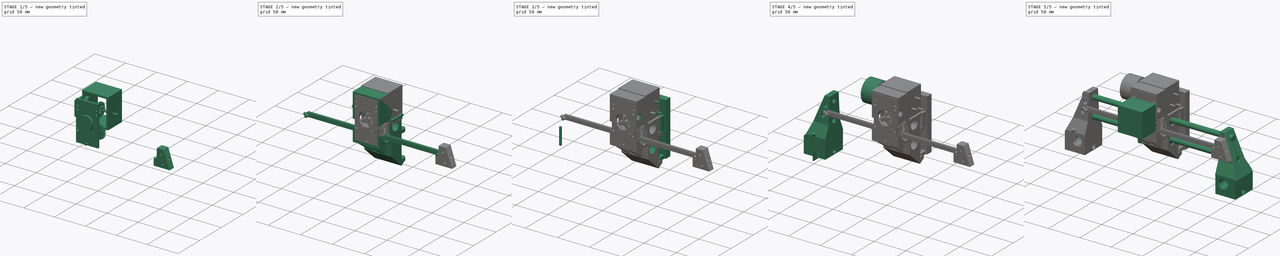
[diagram: build sequence overview — one tinted view per stage of 5, left to right]
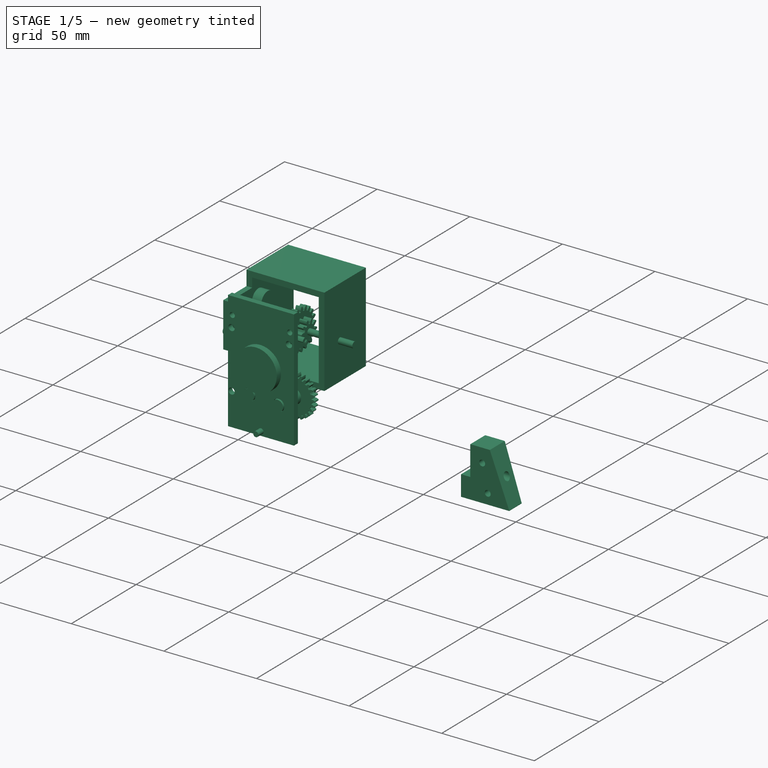
[diagram: stage 1 of 5 — iso view after this stage's code; geometry added in this stage tinted green]
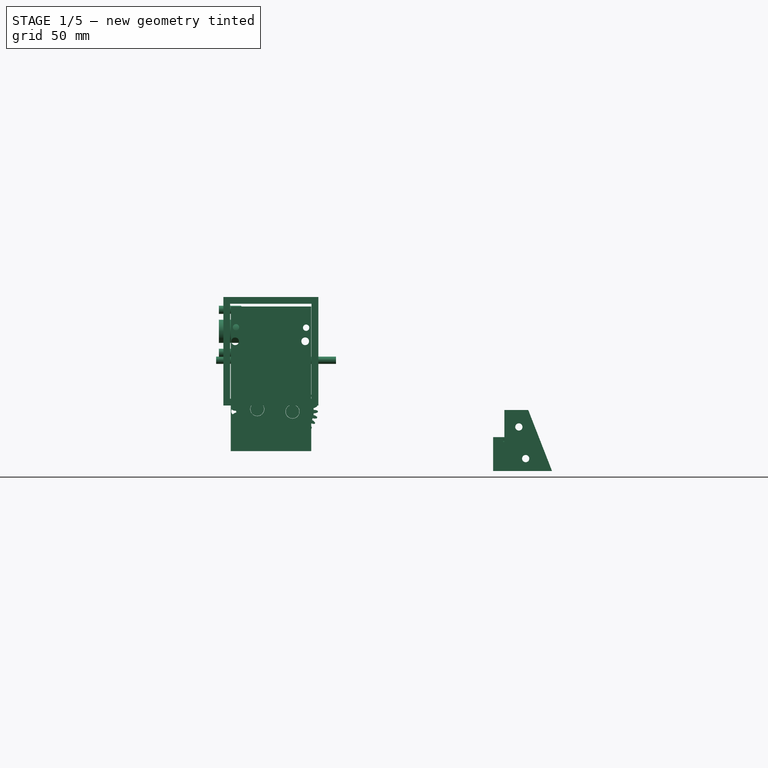
[diagram: stage 1 of 5 — front view after this stage's code; geometry added in this stage tinted green]
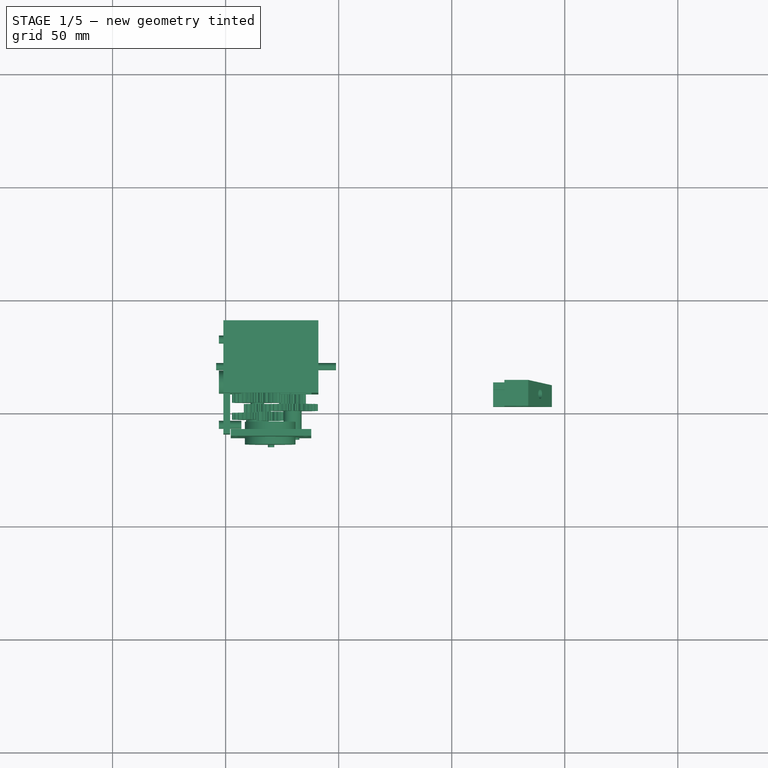
[diagram: stage 1 of 5 — top view after this stage's code; geometry added in this stage tinted green]
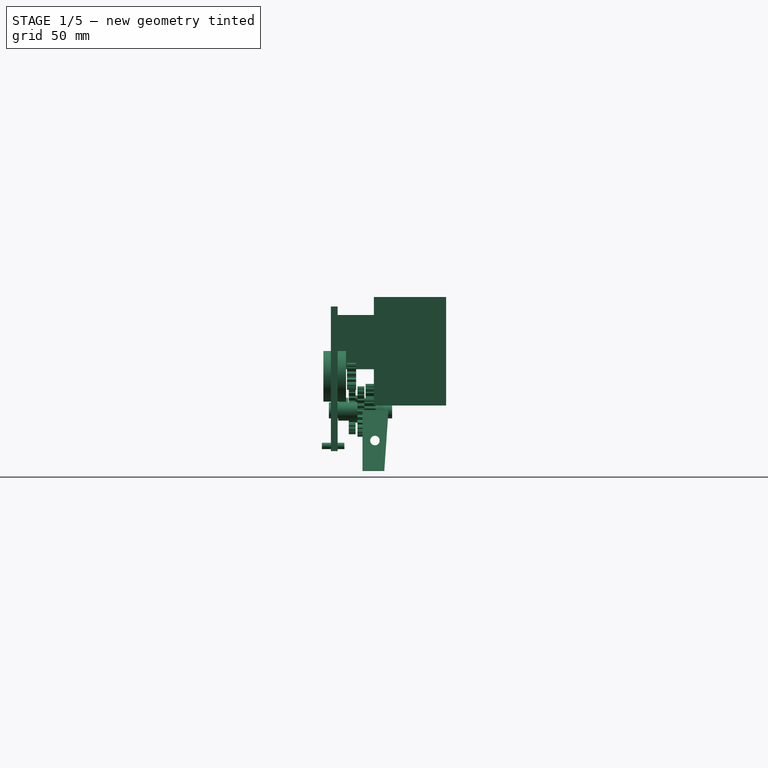
[diagram: stage 1 of 5 — right view after this stage's code; geometry added in this stage tinted green]
FCSTD DOCUMENT  (FreeCAD 0.18R4 (GitTag))
Label: Вертикальный привод Z
License: All rights reserved
LicenseURL: http://en.wikipedia.org/wiki/All_rights_reserved
objects: Part::Cylinder×115, Part::Cut×102, Part::Extrusion×39, Sketcher::SketchObject×32, Part::Box×30, Part::MultiFuse×28, Part::FeaturePython×21, Part::RegularPolygon×12, Part::Cone×8, Part::Mirroring×2
note: 389 computed .brp shape members not serialized (recipe doc carries the construction recipe); baked Part::Feature solids carry a one-line shape summary decoded from their .brp

FEATURE [Part::FeaturePython] InvoluteGear001  label="Шестерня Х"  # WARN: FeaturePython — macro-defined, semantics opaque (R4)
  Placement = pos=(114,12,62.4) rot=(0.530362,-0.599465,0.599465;2.16631rad)
  backlash = 0
  beta = 0
  clearance = 0.25
  double_helix = false
  dw = 20.8
  head = 0
  height = 7.6
  module = 0.8
  numpoints = 6
  pressure_angle = 20
  properties_from_tool = true
  reversed_backlash = false
  shift = 0
  simple = false
  teeth = 26
  transverse_pitch = 2.51327
  undercut = false
FEATURE [Part::RegularPolygon] RegularPolygon011  label="Правильный многоугольник011"
  AttacherType = Attacher::AttachEngine3D
  Circumradius = 4.8
  Polygon = 6
FEATURE [Part::RegularPolygon] RegularPolygon012  label="Правильный многоугольник012"
  AttacherType = Attacher::AttachEngine3D
  Circumradius = 4.8
  Polygon = 6
FEATURE [Part::RegularPolygon] RegularPolygon013  label="Правильный многоугольник013"
  AttacherType = Attacher::AttachEngine3D
  Circumradius = 4.8
  Polygon = 6
FEATURE [Sketcher::SketchObject] Sketch039
  Placement = pos=(0,0,0) rot=(0.57735,0.57735,0.57735;2.0944rad)
  sketch-geometry (4):
    g0: LineSegment StartX=3 StartY=62 StartZ=0 EndX=3 EndY=35 EndZ=0
    g1: LineSegment StartX=3 StartY=62 StartZ=0 EndX=14.5 EndY=62 EndZ=0
    g2: LineSegment StartX=3 StartY=35 StartZ=0 EndX=12.6167 EndY=35 EndZ=0
    g3: LineSegment StartX=14.5 StartY=62 StartZ=0 EndX=12.6167 EndY=35 EndZ=0
  constraints (12):
    c: Vertical(g0)
    c: DistanceX(g0) = 3
    c: DistanceY(g0) = 35
    c: Coincident(g1,g0)
    c: Horizontal(g1)
    c: DistanceY(g0,g0) = 27
    c: Coincident(g2,g0)
    c: Horizontal(g2)
    c: DistanceX(g1,g1) = 11.5
    c: Coincident(g3,g2)
    c: Coincident(g3,g1)
    c: Angle(g3,g2) = 1.64043
FEATURE [Sketcher::SketchObject] Sketch040
  Placement = pos=(0,0,0) rot=(1,0,0;1.5708rad)
  sketch-geometry (3):
    g0: LineSegment StartX=-8.16038 StartY=62.6472 StartZ=0 EndX=-8.16038 EndY=30.4195 EndZ=0
    g1: LineSegment StartX=-8.16038 StartY=62.6472 StartZ=0 EndX=4.41043 EndY=62.6472 EndZ=0
    g2: LineSegment StartX=4.41043 StartY=62.6472 StartZ=0 EndX=-8.16038 EndY=30.4195 EndZ=0
  constraints (7):
    c: Vertical(g0)
    c: Coincident(g0,g1)
    c: Horizontal(g1)
    c: DistanceX(g0) = -8.16038
    c: DistanceY(g0) = 30.4195
    c: Coincident(g0,g2)
    c: Coincident(g1,g2)
FEATURE [Part::Extrusion] Extrude050
  Base = -> Sketch040
  Dir = (0,1,0)
  DirMode = 0
  FaceMakerClass = Part::FaceMakerBullseye
  LengthFwd = 15
  LengthRev = 0
  Placement = pos=(0,1.5,0) rot=(0,0,1;0rad)
  Solid = true
  Symmetric = false
FEATURE [Part::Cylinder] Cylinder124  label="Цилиндр113"
  Angle = 360
  AttacherType = Attacher::AttachEngine3D
  Height = 40
  Placement = pos=(8.3,42,54.5) rot=(0.57735,0.57735,-0.57735;2.0944rad)
  Radius = 1.6
FEATURE [Part::Cylinder] Cylinder127  label="Цилиндр116"
  Angle = 360
  AttacherType = Attacher::AttachEngine3D
  Height = 40
  Placement = pos=(5.3,42,40.5) rot=(0.57735,0.57735,-0.57735;2.0944rad)
  Radius = 1.6
FEATURE [Sketcher::SketchObject] Sketch055
  Placement = pos=(0,0,0) rot=(0.57735,0.57735,0.57735;2.0944rad)
  sketch-geometry (6):
    g0: LineSegment StartX=3 StartY=46 StartZ=0 EndX=10.5 EndY=46 EndZ=0
    g1: LineSegment StartX=10.5 StartY=46 StartZ=0 EndX=10.5 EndY=50 EndZ=0
    g2: LineSegment StartX=3 StartY=46 StartZ=0 EndX=3 EndY=35 EndZ=0
    g3: LineSegment StartX=3 StartY=35 StartZ=0 EndX=12.6 EndY=35 EndZ=0
    g4: LineSegment StartX=10.5 StartY=50 StartZ=0 EndX=13.6463 EndY=50 EndZ=0
    g5: LineSegment StartX=12.6 StartY=35 StartZ=0 EndX=13.6463 EndY=50 EndZ=0
  constraints (18):
    c: DistanceX(g0) = 3
    c: DistanceY(g0) = 46
    c: Horizontal(g0)
    c: DistanceX(g0,g0) = 7.5
    c: Vertical(g1)
    c: Coincident(g1,g0)
    c: DistanceY(g1,g1) = 4
    c: Vertical(g2)
    c: Coincident(g2,g0)
    c: DistanceY(g2,g2) = 11
    c: Horizontal(g3)
    c: Coincident(g2,g3)
    c: DistanceX(g3,g3) = 9.6
    c: Horizontal(g4)
    c: Coincident(g4,g1)
    c: Coincident(g5,g3)
    c: Angle(g5,g3) = 1.64043
    c: Coincident(g4,g5)
FEATURE [Part::FeaturePython] InvoluteGear025  label="Шестерня Х малая001"  # WARN: FeaturePython — macro-defined, semantics opaque (R4)
  Placement = pos=(119.7,0.148856,76.906) rot=(0.980838,0.137848,-0.137679;1.59136rad)
  backlash = 0
  beta = 0
  clearance = 0.25
  double_helix = false
  dw = 10.4
  head = 0
  height = 4
  module = 0.8
  numpoints = 6
  pressure_angle = 20
  properties_from_tool = true
  reversed_backlash = false
  shift = 0
  simple = false
  teeth = 13
  transverse_pitch = 2.51327
  undercut = false
FEATURE [Part::FeaturePython] InvoluteGear  # WARN: FeaturePython — macro-defined, semantics opaque (R4)
  Placement = pos=(114,-3.1,62.4) rot=(-1,0,0;1.5708rad)
  backlash = 0
  beta = 0
  clearance = 0.25
  double_helix = false
  dw = 20.8
  head = 0
  height = 3
  module = 0.8
  numpoints = 6
  pressure_angle = 20
  properties_from_tool = true
  reversed_backlash = false
  shift = 0
  simple = false
  teeth = 26
  transverse_pitch = 2.51327
  undercut = false
FEATURE [Part::FeaturePython] InvoluteGear026  label="Шестерня Х малая002"  # WARN: FeaturePython — macro-defined, semantics opaque (R4)
  Placement = pos=(114,3.81999,62.403) rot=(0.999696,-0.01745,0.017428;1.57231rad)
  backlash = 0
  beta = 0
  clearance = 0.25
  double_helix = false
  dw = 10.4
  head = 0
  height = 4
  module = 0.8
  numpoints = 6
  pressure_angle = 20
  properties_from_tool = true
  reversed_backlash = false
  shift = 0
  simple = false
  teeth = 13
  transverse_pitch = 2.51327
  undercut = false
FEATURE [Part::FeaturePython] InvoluteGear027  # WARN: FeaturePython — macro-defined, semantics opaque (R4)
  Placement = pos=(129.6,0.8,61.3) rot=(-1,0,0;1.5708rad)
  backlash = 0
  beta = 0
  clearance = 0.25
  double_helix = false
  dw = 20.8
  head = 0
  height = 3
  module = 0.8
  numpoints = 6
  pressure_angle = 20
  properties_from_tool = true
  reversed_backlash = false
  shift = 0
  simple = false
  teeth = 26
  transverse_pitch = 2.51327
  undercut = false
FEATURE [Part::FeaturePython] InvoluteGear028  label="Шестерня Х малая003"  # WARN: FeaturePython — macro-defined, semantics opaque (R4)
  Placement = pos=(129.6,8.8,61.3) rot=(0.983106,-0.129428,0.129428;1.58783rad)
  backlash = 0
  beta = 0
  clearance = 0.25
  double_helix = false
  dw = 10.4
  head = 0
  height = 5
  module = 0.8
  numpoints = 6
  pressure_angle = 20
  properties_from_tool = true
  reversed_backlash = false
  shift = 0
  simple = false
  teeth = 13
  transverse_pitch = 2.51327
  undercut = false
FEATURE [Part::Box] Box081  label="Куб081"
  AttacherType = Attacher::AttachEngine3D
  Height = 64
  Length = 35.6
  Placement = pos=(102.3,-11,43.8) rot=(0,0,1;0rad)
  Width = 3
FEATURE [Part::Cylinder] Cylinder214  label="Цилиндр191"
  Angle = 360
  AttacherType = Attacher::AttachEngine3D
  Height = 28
  Placement = pos=(114,-11.9,62.4) rot=(-1,0,0;1.5708rad)
  Radius = 3.1
FEATURE [Part::Cylinder] Cylinder215  label="Цилиндр192"
  Angle = 360
  AttacherType = Attacher::AttachEngine3D
  Height = 28
  Placement = pos=(129.6,-11.9,61.3) rot=(-1,0,0;1.5708rad)
  Radius = 3.1
FEATURE [Part::Cylinder] Cylinder220  label="Цилиндр195"
  Angle = 360
  AttacherType = Attacher::AttachEngine3D
  Height = 10
  Placement = pos=(104.2,-15,61.4) rot=(-1,0,0;1.5708rad)
  Radius = 1.7
FEATURE [Part::Cylinder] Cylinder221  label="Цилиндр196"
  Angle = 360
  AttacherType = Attacher::AttachEngine3D
  Height = 10
  Placement = pos=(120.1,-15,46.1) rot=(-1,0,0;1.5708rad)
  Radius = 1.4
FEATURE [Part::Cylinder] Cylinder222  label="Цилиндр197"
  Angle = 360
  AttacherType = Attacher::AttachEngine3D
  Height = 10
  Placement = pos=(135.2,-15,92.4) rot=(-1,0,0;1.5708rad)
  Radius = 1.7
FEATURE [Part::Cylinder] Cylinder224  label="Цилиндр199"
  Angle = 360
  AttacherType = Attacher::AttachEngine3D
  Height = 10
  Placement = pos=(104.2,-15,92.4) rot=(-1,0,0;1.5708rad)
  Radius = 1.7
FEATURE [Part::Cylinder] Cylinder225  label="Цилиндр200"
  Angle = 360
  AttacherType = Attacher::AttachEngine3D
  Height = 10
  Placement = pos=(104.6,-15,98.6) rot=(-1,0,0;1.5708rad)
  Radius = 1.4
FEATURE [Part::Cylinder] Cylinder226  label="Цилиндр201"
  Angle = 360
  AttacherType = Attacher::AttachEngine3D
  Height = 10
  Placement = pos=(135.6,-15,98.4) rot=(-1,0,0;1.5708rad)
  Radius = 1.4
FEATURE [Part::Cylinder] Cylinder227  label="Цилиндр202"
  Angle = 360
  AttacherType = Attacher::AttachEngine3D
  Height = 28
  Placement = pos=(114,-11.9,62.4) rot=(-1,0,0;1.5708rad)
  Radius = 3.1
FEATURE [Part::Cylinder] Cylinder228  label="Цилиндр203"
  Angle = 360
  AttacherType = Attacher::AttachEngine3D
  Height = 28
  Placement = pos=(129.6,-11.9,61.3) rot=(-1,0,0;1.5708rad)
  Radius = 3.1
FEATURE [Part::Cut] Cut260
  Base = -> Box081
  Tool = -> Cylinder214
FEATURE [Part::Cut] Cut261
  Base = -> Cut260
  Tool = -> Cylinder215
FEATURE [Part::Cut] Cut262
  Base = -> Cut261
  Tool = -> Cylinder225
FEATURE [Part::Cut] Cut263
  Base = -> Cut262
  Tool = -> Cylinder226
FEATURE [Part::Cut] Cut264
  Base = -> Cut263
  Tool = -> Cylinder222
FEATURE [Part::Cut] Cut265
  Base = -> Cut264
  Tool = -> Cylinder224
FEATURE [Part::Cut] Cut266
  Base = -> Cut265
  Tool = -> Cylinder220
FEATURE [Part::Cylinder] Cylinder229  label="Цилиндр204"
  Angle = 360
  AttacherType = Attacher::AttachEngine3D
  Height = 10
  Placement = pos=(119.7,-14.3,76.9) rot=(-1,0,0;1.5708rad)
  Radius = 11.2
FEATURE [Part::MultiFuse] Fusion112
  Shapes = -> [InvoluteGear026,InvoluteGear]
FEATURE [Part::Cylinder] Cylinder230  label="Цилиндр205"
  Angle = 360
  AttacherType = Attacher::AttachEngine3D
  Height = 28
  Placement = pos=(114,-11.9,62.4) rot=(-1,0,0;1.5708rad)
  Radius = 3.1
FEATURE [Part::Cylinder] Cylinder231  label="Цилиндр206"
  Angle = 360
  AttacherType = Attacher::AttachEngine3D
  Height = 28
  Placement = pos=(114,-11.9,62.4) rot=(-1,0,0;1.5708rad)
  Radius = 3
FEATURE [Part::Cylinder] Cylinder232  label="Цилиндр207"
  Angle = 360
  AttacherType = Attacher::AttachEngine3D
  Height = 28
  Placement = pos=(129.6,-11.9,61.3) rot=(-1,0,0;1.5708rad)
  Radius = 3
FEATURE [Part::MultiFuse] Fusion114
  Shapes = -> [InvoluteGear027,InvoluteGear028]
FEATURE [Part::Cut] Cut270
  Base = -> Fusion114
  Tool = -> Cylinder228
FEATURE [Part::Cut] Cut271
  Base = -> Fusion112
  Tool = -> Cylinder227
FEATURE [Part::Cut] Cut272
  Base = -> InvoluteGear001
  Tool = -> Cylinder230
FEATURE [Part::Extrusion] Extrude049
  Base = -> Sketch039
  Dir = (1,0,0)
  DirMode = 0
  FaceMakerClass = Part::FaceMakerBullseye
  LengthFwd = 21
  LengthRev = 0
  Placement = pos=(-6.3,0,0) rot=(0,0,1;0rad)
  Solid = true
  Symmetric = false
FEATURE [Part::Cylinder] Cylinder181  label="Цилиндр164"
  Angle = 360
  AttacherType = Attacher::AttachEngine3D
  Height = 19
  Placement = pos=(15.3,8.5,48.5) rot=(0,-1,0;1.5708rad)
  Radius = 2.1
FEATURE [Part::Cut] Cut273
  Base = -> Extrude049
  Tool = -> Extrude050
FEATURE [Part::Extrusion] Extrude067
  Base = -> Sketch055
  Dir = (1,0,0)
  DirMode = 0
  FaceMakerClass = Part::FaceMakerBullseye
  LengthFwd = 5
  LengthRev = 0
  Placement = pos=(14.7,0,0) rot=(0,0,1;0rad)
  Solid = true
  Symmetric = false
FEATURE [Part::MultiFuse] Fusion115
  Shapes = -> [Cut273,Extrude067]
FEATURE [Part::Cut] Cut274
  Base = -> Fusion115
  Tool = -> Cylinder124
FEATURE [Part::Cut] Cut275
  Base = -> Cut274
  Tool = -> Cylinder127
FEATURE [Part::Cut] Cut276
  Base = -> Cut275
  Tool = -> Cylinder181
FEATURE [Part::Mirroring] Part__Mirroring  label="Cut276 (Mirror #2)"
  Base = (0,8.75,48.5)
  Normal = (1,0,-1.19209e-07)
  Placement = pos=(238,0,0) rot=(0,0,1;0rad)
  Source = -> Cut276
FEATURE [Part::Cylinder] Cylinder  label="Цилиндр"
  Angle = 360
  AttacherType = Attacher::AttachEngine3D
  Height = 4.5
  Radius = 5
FEATURE [Part::Cylinder] Cylinder233  label="Цилиндр208"
  Angle = 360
  AttacherType = Attacher::AttachEngine3D
  Height = 16
  Placement = pos=(0,0,-3) rot=(0,0,1;0rad)
  Radius = 3.2
FEATURE [Part::Cut] Cut277
  Base = -> Cylinder
  Placement = pos=(114,-3.3,62.4) rot=(1,0,0;1.5708rad)
  Tool = -> Cylinder233
FEATURE [Part::Cylinder] Cylinder234  label="Цилиндр209"
  Angle = 360
  AttacherType = Attacher::AttachEngine3D
  Height = 8.5
  Placement = pos=(129.6,-7.8,61.3) rot=(-1,0,0;1.5708rad)
  Radius = 4
FEATURE [Part::Cylinder] Cylinder235  label="Цилиндр210"
  Angle = 360
  AttacherType = Attacher::AttachEngine3D
  Height = 16
  Placement = pos=(129.6,-9.8,61.3) rot=(-1,0,0;1.5708rad)
  Radius = 3.2
FEATURE [Part::Cut] Cut278
  Base = -> Cylinder234
  Tool = -> Cylinder235
FEATURE [Part::Cylinder] Cylinder236  label="Цилиндр211"
  Angle = 360
  AttacherType = Attacher::AttachEngine3D
  Height = 3.3
  Placement = pos=(129.6,9,61.3) rot=(-1,0,0;1.5708rad)
  Radius = 4
FEATURE [Part::Cylinder] Cylinder237  label="Цилиндр212"
  Angle = 360
  AttacherType = Attacher::AttachEngine3D
  Height = 10
  Placement = pos=(129.6,5.1,61.3) rot=(-1,0,0;1.5708rad)
  Radius = 3.2
FEATURE [Part::Cut] Cut279
  Base = -> Cylinder236
  Tool = -> Cylinder237
FEATURE [Part::Cylinder] Cylinder238  label="Цилиндр213"
  Angle = 360
  AttacherType = Attacher::AttachEngine3D
  Height = 10
  Placement = pos=(119.7,-6.3,76.9) rot=(-1,0,0;1.5708rad)
  Radius = 2.6
FEATURE [Part::Cut] Cut280
  Base = -> InvoluteGear025
  Tool = -> Cylinder238
FEATURE [Part::FeaturePython] InvoluteGear029  # WARN: FeaturePython — macro-defined, semantics opaque (R4)
  Placement = pos=(120.5,20,84) rot=(0.583952,-0.563916,0.583952;4.16852rad)
  backlash = 0
  beta = 0
  clearance = 0.25
  double_helix = false
  dw = 10
  head = 0
  height = 4
  module = 1
  numpoints = 6
  pressure_angle = 20
  properties_from_tool = true
  reversed_backlash = false
  shift = 0
  simple = false
  teeth = 10
  transverse_pitch = 3.14159
  undercut = false
FEATURE [Part::FeaturePython] InvoluteGear030  # WARN: FeaturePython — macro-defined, semantics opaque (R4)
  Placement = pos=(117.5,20,84) rot=(0.57735,-0.57735,0.57735;4.18879rad)
  backlash = 0
  beta = 0
  clearance = 0.25
  double_helix = false
  dw = 20
  head = 0
  height = 3
  module = 1
  numpoints = 6
  pressure_angle = 20
  properties_from_tool = true
  reversed_backlash = false
  shift = 0
  simple = false
  teeth = 20
  transverse_pitch = 3.14159
  undercut = false
FEATURE [Part::Cylinder] Cylinder239  label="Цилиндр214"
  Angle = 360
  AttacherType = Attacher::AttachEngine3D
  Height = 53
  Placement = pos=(95.8,20,84) rot=(0,1,0;1.5708rad)
  Radius = 1.6
FEATURE [Part::MultiFuse] Fusion116
  Shapes = -> [InvoluteGear029,InvoluteGear030]
FEATURE [Part::Box] Box091  label="Куб091"
  AttacherType = Attacher::AttachEngine3D
  Height = 24
  Length = 3
  Placement = pos=(99,-10,80) rot=(0,0,1;0rad)
  Width = 18
FEATURE [Part::Box] Box092  label="Куб092"
  AttacherType = Attacher::AttachEngine3D
  Height = 42
  Length = 3
  Placement = pos=(141,8,64) rot=(0,1,0;4.71239rad)
  Width = 32
FEATURE [Part::Box] Box093  label="Куб093"
  AttacherType = Attacher::AttachEngine3D
  Height = 42
  Length = 3
  Placement = pos=(138,8,67) rot=(0,0,1;0rad)
  Width = 32
FEATURE [Part::Box] Box094  label="Куб094"
  AttacherType = Attacher::AttachEngine3D
  Height = 42
  Length = 3
  Placement = pos=(141,8,109) rot=(0,-1,0;1.5708rad)
  Width = 32
FEATURE [Part::Box] Box095  label="Куб095"
  AttacherType = Attacher::AttachEngine3D
  Height = 42
  Length = 3
  Placement = pos=(99,8,67) rot=(0,0,1;0rad)
  Width = 32
FEATURE [Part::MultiFuse] Fusion117
  Shapes = -> [Box091,Box095,Box094,Box093,Box092]
FEATURE [Part::Cylinder] Cylinder240  label="Цилиндр215"
  Angle = 360
  AttacherType = Attacher::AttachEngine3D
  Height = 10
  Placement = pos=(97,12.9,96.8) rot=(0,1,0;1.5708rad)
  Radius = 5.1
FEATURE [Part::Cylinder] Cylinder241  label="Цилиндр216"
  Angle = 360
  AttacherType = Attacher::AttachEngine3D
  Height = 10
  Placement = pos=(97,31.6,106.3) rot=(0,1,0;1.5708rad)
  Radius = 1.8
FEATURE [Part::Cylinder] Cylinder242  label="Цилиндр217"
  Angle = 360
  AttacherType = Attacher::AttachEngine3D
  Height = 10
  Placement = pos=(97,-5.8,87.3) rot=(0,1,0;1.5708rad)
  Radius = 1.8
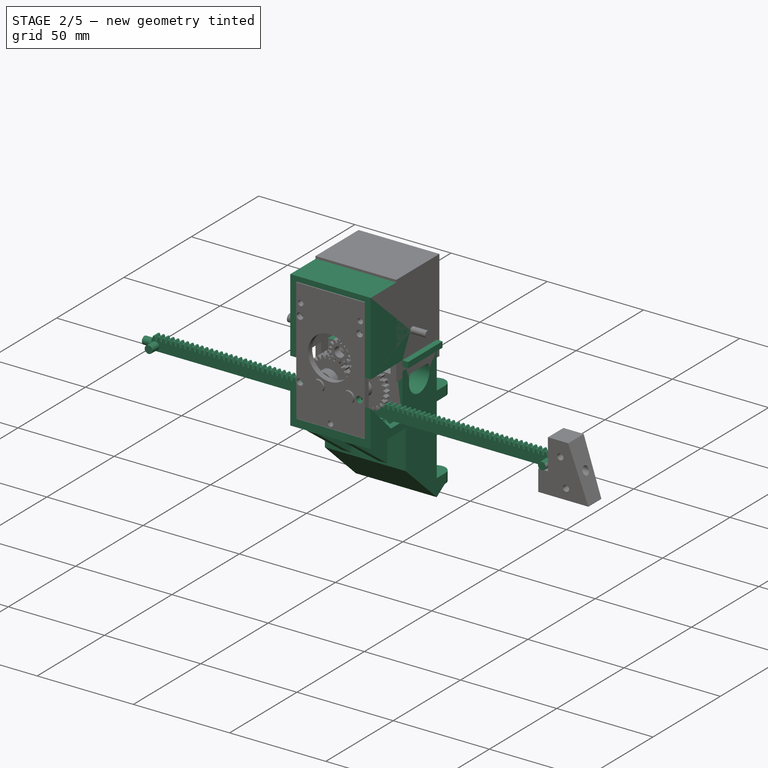
[diagram: stage 2 of 5 — iso view after this stage's code; geometry added in this stage tinted green]
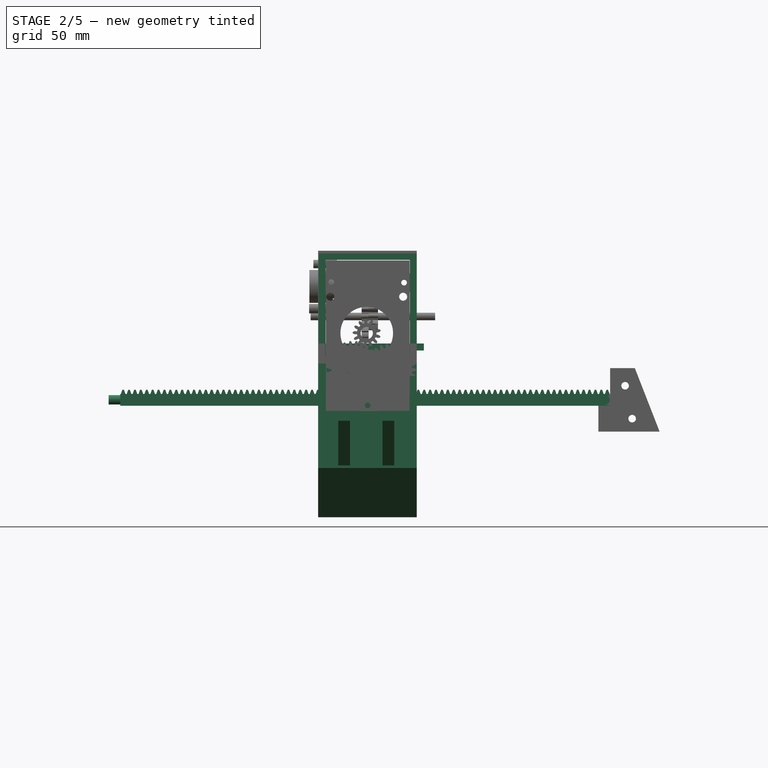
[diagram: stage 2 of 5 — front view after this stage's code; geometry added in this stage tinted green]
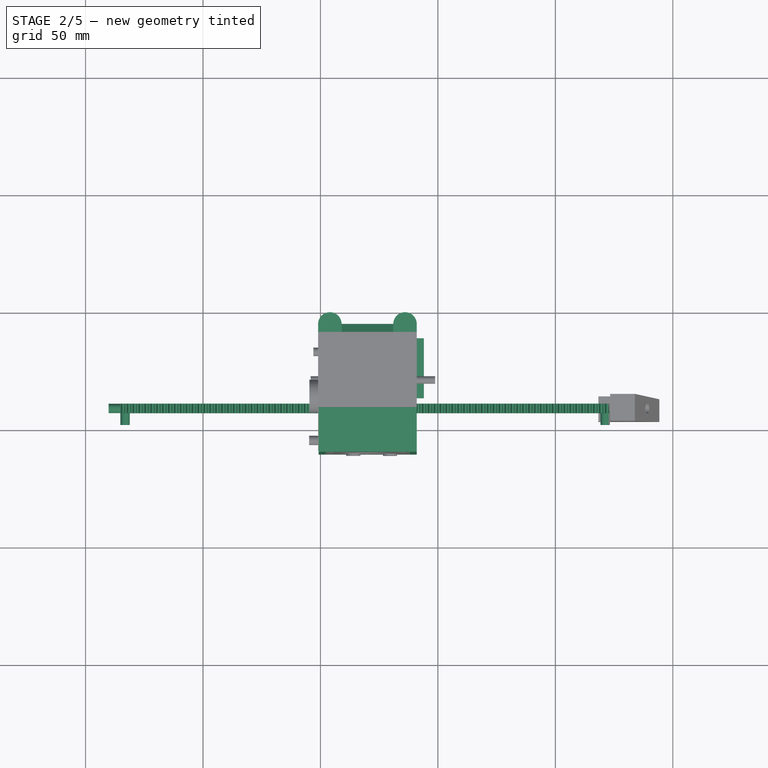
[diagram: stage 2 of 5 — top view after this stage's code; geometry added in this stage tinted green]
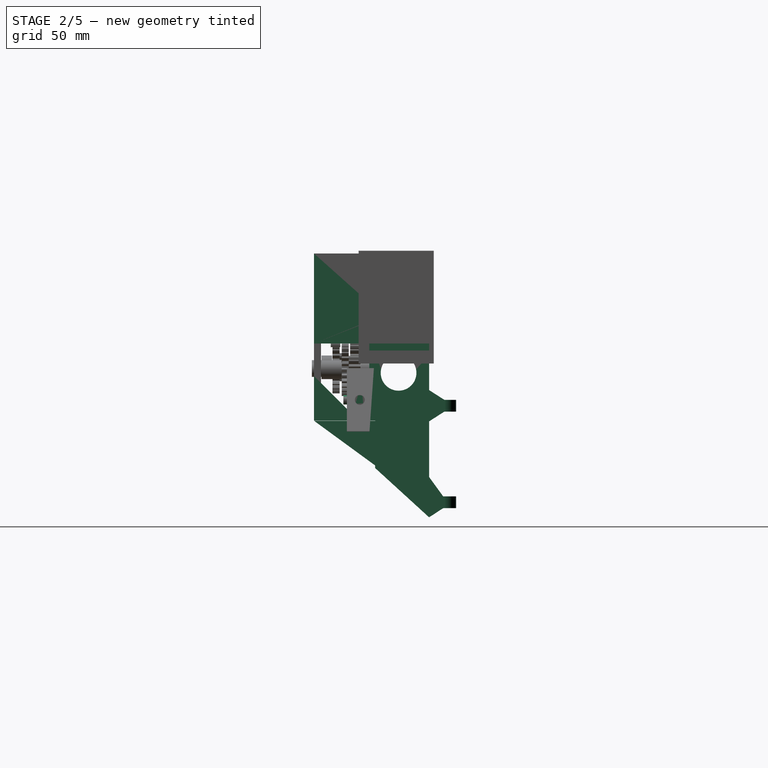
[diagram: stage 2 of 5 — right view after this stage's code; geometry added in this stage tinted green]
FEATURE [Part::Box] Box  label="Куб"
  AttacherType = Attacher::AttachEngine3D
  Height = 74
  Length = 42
  Placement = pos=(99,15,-1.5) rot=(0,0,1;0rad)
  Width = 23
FEATURE [Sketcher::SketchObject] Sketch023
FEATURE [Part::Cylinder] Cylinder108  label="Ось шестерни Х"
  Angle = 360
  AttacherType = Attacher::AttachEngine3D
  Height = 8
  Placement = pos=(105.3,4.3,43.7) rot=(-1,0,0;1.5708rad)
  Radius = 2.7
FEATURE [Sketcher::SketchObject] Sketch025
  Placement = pos=(0,0,0) rot=(0.57735,0.57735,0.57735;2.0944rad)
  sketch-geometry (3):
    g0: LineSegment StartX=15 StartY=19 StartZ=0 EndX=15 EndY=38 EndZ=0
    g1: LineSegment StartX=15 StartY=38 StartZ=0 EndX=-11 EndY=38 EndZ=0
    g2: LineSegment StartX=-11 StartY=38 StartZ=0 EndX=15 EndY=19 EndZ=0
  constraints (9):
    c: Vertical(g0)
    c: DistanceX(g0) = 15
    c: DistanceY(g0) = 19
    c: DistanceY(g0,g0) = 19
    c: Horizontal(g1)
    c: Coincident(g1,g0)
    c: DistanceX(g1,g1) = 26
    c: Coincident(g1,g2)
    c: Coincident(g2,g0)
FEATURE [Part::Extrusion] Extrude032
  Base = -> Sketch025
  Dir = (1,0,0)
  DirMode = 0
  FaceMakerClass = Part::FaceMakerBullseye
  LengthFwd = 5
  LengthRev = 0
  Placement = pos=(107.6,0,1.6) rot=(0,0,1;0rad)
  Solid = true
  Symmetric = false
FEATURE [Sketcher::SketchObject] Sketch026
  Placement = pos=(0,0,0) rot=(0.57735,0.57735,0.57735;2.0944rad)
  sketch-geometry (3):
    g0: LineSegment StartX=15 StartY=19 StartZ=0 EndX=15 EndY=38 EndZ=0
    g1: LineSegment StartX=15 StartY=38 StartZ=0 EndX=-11 EndY=38 EndZ=0
    g2: LineSegment StartX=-11 StartY=38 StartZ=0 EndX=15 EndY=19 EndZ=0
  constraints (9):
    c: Vertical(g0)
    c: DistanceX(g0) = 15
    c: DistanceY(g0) = 19
    c: DistanceY(g0,g0) = 19
    c: Horizontal(g1)
    c: Coincident(g1,g0)
    c: Coincident(g1,g2)
    c: Coincident(g2,g0)
    c: DistanceX(g1,g1) = 26
FEATURE [Part::Extrusion] Extrude033
  Base = -> Sketch026
  Dir = (1,0,0)
  DirMode = 0
  FaceMakerClass = Part::FaceMakerBullseye
  LengthFwd = 5
  LengthRev = 0
  Placement = pos=(126.4,0,1.6) rot=(0,0,1;0rad)
  Solid = true
  Symmetric = false
FEATURE [Part::Cylinder] Cylinder110  label="Цилиндр099"
  Angle = 360
  AttacherType = Attacher::AttachEngine3D
  Height = 45
  Placement = pos=(96.2,25,60) rot=(0.57735,0.57735,0.57735;2.0944rad)
  Radius = 7.6
FEATURE [Part::Cylinder] Cylinder148  label="Цилиндр133"
  Angle = 360
  AttacherType = Attacher::AttachEngine3D
  Height = 44
  Placement = pos=(97.2,34.1,79.2) rot=(0,1,0;1.5708rad)
  Radius = 11.5
FEATURE [Part::FeaturePython] InvoluteRack001  # WARN: FeaturePython — macro-defined, semantics opaque (R4)
  Placement = pos=(16,4,46) rot=(0,0,-1;1.5708rad)
  add_endings = true
  beta = 0
  clearance = 0.25
  double_helix = false
  head = 0
  height = 4
  module = 0.8
  pressure_angle = 20
  properties_from_tool = true
  simplified = false
  teeth = 83
  thickness = 5
  transverse_pitch = 2.51327
FEATURE [Part::Cylinder] Cylinder179  label="Цилиндр162"
  Angle = 360
  AttacherType = Attacher::AttachEngine3D
  Height = 5
  Placement = pos=(9.8,7.5,48) rot=(0,1,0;1.5708rad)
  Radius = 2
FEATURE [Part::Cylinder] Cylinder180  label="Цилиндр163"
  Angle = 360
  AttacherType = Attacher::AttachEngine3D
  Height = 5
  Placement = pos=(228.3,7.5,48) rot=(0,-1,0;1.5708rad)
  Radius = 2
FEATURE [Part::Box] Box077  label="Куб077"
  AttacherType = Attacher::AttachEngine3D
  Height = 26
  Length = 41.8
  Placement = pos=(99.2,15,39.7) rot=(1,0,0;1.5708rad)
  Width = 4
FEATURE [Sketcher::SketchObject] Sketch056
  sketch-geometry (4):
    g0: ArcOfCircle CenterX=99 CenterY=83 CenterZ=0 NormalX=0 NormalY=0 NormalZ=1 AngleXU=0 Radius=5 StartAngle=3.14159 EndAngle=6.28319
    g1: LineSegment StartX=94 StartY=83 StartZ=0 EndX=94 EndY=89.5 EndZ=0
    g2: LineSegment StartX=104 StartY=83 StartZ=0 EndX=104 EndY=89.5 EndZ=0
    g3: LineSegment StartX=94 StartY=89.5 StartZ=0 EndX=104 EndY=89.5 EndZ=0
  constraints (13):
    c: DistanceX(g0) = 94
    c: DistanceY(g0) = 83
    c: Vertical(g1)
    c: Coincident(g1,g0)
    c: DistanceY(g1,g1) = 6.5
    c: Vertical(g2)
    c: DistanceY(g0,g0) = 0
    c: Radius(g0) = 5
    c: DistanceY(g0,g0) = 0
    c: Coincident(g2,g0)
    c: Equal(g2,g1)
    c: Coincident(g3,g2)
    c: Coincident(g3,g1)
FEATURE [Part::Extrusion] Extrude068
  Base = -> Sketch056
  Dir = (0,0,1)
  DirMode = 0
  FaceMakerClass = Part::FaceMakerBullseye
  LengthFwd = 5
  LengthRev = 0
  Placement = pos=(203,127.5,2.4) rot=(0,0,1;3.14159rad)
  Solid = true
  Symmetric = false
FEATURE [Sketcher::SketchObject] Sketch057
  sketch-geometry (4):
    g0: ArcOfCircle CenterX=99 CenterY=83 CenterZ=0 NormalX=0 NormalY=0 NormalZ=1 AngleXU=0 Radius=5 StartAngle=3.14159 EndAngle=6.28319
    g1: LineSegment StartX=94 StartY=83 StartZ=0 EndX=94 EndY=89.5 EndZ=0
    g2: LineSegment StartX=104 StartY=83 StartZ=0 EndX=104 EndY=89.5 EndZ=0
    g3: LineSegment StartX=94 StartY=89.5 StartZ=0 EndX=104 EndY=89.5 EndZ=0
  constraints (13):
    c: DistanceX(g0) = 94
    c: DistanceY(g0) = 83
    c: Vertical(g1)
    c: Coincident(g1,g0)
    c: DistanceY(g1,g1) = 6.5
    c: Vertical(g2)
    c: DistanceY(g0,g0) = 0
    c: Radius(g0) = 5
    c: DistanceY(g0,g0) = 0
    c: Coincident(g2,g0)
    c: Equal(g2,g1)
    c: Coincident(g3,g2)
    c: Coincident(g3,g1)
FEATURE [Part::Extrusion] Extrude069
  Base = -> Sketch057
  Dir = (0,0,1)
  DirMode = 0
  FaceMakerClass = Part::FaceMakerBullseye
  LengthFwd = 5
  LengthRev = 0
  Placement = pos=(235,127.5,43.5) rot=(0,0,1;3.14159rad)
  Solid = true
  Symmetric = false
FEATURE [Sketcher::SketchObject] Sketch058
  sketch-geometry (4):
    g0: ArcOfCircle CenterX=99 CenterY=83 CenterZ=0 NormalX=0 NormalY=0 NormalZ=1 AngleXU=0 Radius=5 StartAngle=3.14159 EndAngle=6.28319
    g1: LineSegment StartX=94 StartY=83 StartZ=0 EndX=94 EndY=89.5 EndZ=0
    g2: LineSegment StartX=104 StartY=83 StartZ=0 EndX=104 EndY=89.5 EndZ=0
    g3: LineSegment StartX=94 StartY=89.5 StartZ=0 EndX=104 EndY=89.5 EndZ=0
  constraints (13):
    c: DistanceX(g0) = 94
    c: DistanceY(g0) = 83
    c: Vertical(g1)
    c: Coincident(g1,g0)
    c: DistanceY(g1,g1) = 6.5
    c: Vertical(g2)
    c: DistanceY(g0,g0) = 0
    c: Radius(g0) = 5
    c: DistanceY(g0,g0) = 0
    c: Coincident(g2,g0)
    c: Equal(g2,g1)
    c: Coincident(g3,g2)
    c: Coincident(g3,g1)
FEATURE [Part::Extrusion] Extrude070
  Base = -> Sketch058
  Dir = (0,0,1)
  DirMode = 0
  FaceMakerClass = Part::FaceMakerBullseye
  LengthFwd = 5
  LengthRev = 0
  Placement = pos=(235,127.5,2.4) rot=(0,0,1;3.14159rad)
  Solid = true
  Symmetric = false
FEATURE [Sketcher::SketchObject] Sketch059
  sketch-geometry (4):
    g0: ArcOfCircle CenterX=99 CenterY=83 CenterZ=0 NormalX=0 NormalY=0 NormalZ=1 AngleXU=0 Radius=5 StartAngle=3.14159 EndAngle=6.28319
    g1: LineSegment StartX=94 StartY=83 StartZ=0 EndX=94 EndY=89.5 EndZ=0
    g2: LineSegment StartX=104 StartY=83 StartZ=0 EndX=104 EndY=89.5 EndZ=0
    g3: LineSegment StartX=94 StartY=89.5 StartZ=0 EndX=104 EndY=89.5 EndZ=0
  constraints (13):
    c: DistanceX(g0) = 94
    c: DistanceY(g0) = 83
    c: Vertical(g1)
    c: Coincident(g1,g0)
    c: DistanceY(g1,g1) = 6.5
    c: Vertical(g2)
    c: DistanceY(g0,g0) = 0
    c: Radius(g0) = 5
    c: DistanceY(g0,g0) = 0
    c: Coincident(g2,g0)
    c: Equal(g2,g1)
    c: Coincident(g3,g2)
    c: Coincident(g3,g1)
FEATURE [Part::Extrusion] Extrude071
  Base = -> Sketch059
  Dir = (0,0,1)
  DirMode = 0
  FaceMakerClass = Part::FaceMakerBullseye
  LengthFwd = 5
  LengthRev = 0
  Placement = pos=(203,127.5,43.5) rot=(0,0,1;3.14159rad)
  Solid = true
  Symmetric = false
FEATURE [Sketcher::SketchObject] Sketch
  Placement = pos=(0,0,0) rot=(0.57735,0.57735,0.57735;2.0944rad)
  sketch-geometry (4):
    g0: LineSegment StartX=44.5 StartY=43.5 StartZ=0 EndX=44.5 EndY=48.5 EndZ=0
    g1: LineSegment StartX=44.5 StartY=48.5 StartZ=0 EndX=38.5 EndY=56.7521 EndZ=0
    g2: LineSegment StartX=44.5 StartY=43.5 StartZ=0 EndX=38.5 EndY=39.6 EndZ=0
    g3: LineSegment StartX=38.5 StartY=56.7521 StartZ=0 EndX=38.5 EndY=39.6 EndZ=0
  constraints (10):
    c: Vertical(g0)
    c: DistanceX(g0) = 44.5
    c: DistanceY(g0,g0) = 5
    c: Coincident(g1,g0)
    c: Coincident(g2,g0)
    c: Coincident(g3,g2)
    c: Coincident(g3,g1)
    c: Vertical(g3)
    c: DistanceX(g2,g2) = 6
    c: DistanceY(g-1,g2) = 39.6
FEATURE [Part::Extrusion] Extrude072
  Base = -> Sketch
  Dir = (-1,0,0)
  DirMode = 0
  FaceMakerClass = Part::FaceMakerBullseye
  LengthFwd = 22
  LengthRev = 0
  Placement = pos=(131,-0.5,-41.1) rot=(0,0,1;0rad)
  Solid = true
  Symmetric = false
FEATURE [Part::Cut] Cut229
  Base = -> Box
  Tool = -> Cylinder148
FEATURE [Part::Cylinder] Cylinder196  label="Цилиндр177"
  Angle = 360
  AttacherType = Attacher::AttachEngine3D
  Height = 53
  Placement = pos=(95.8,27.9,96.8) rot=(0,1,0;1.5708rad)
  Radius = 1.6
FEATURE [Part::Cylinder] Cylinder198  label="Цилиндр179"
  Angle = 360
  AttacherType = Attacher::AttachEngine3D
  Height = 53
  Placement = pos=(95.8,20,84) rot=(0,1,0;1.5708rad)
  Radius = 1.6
FEATURE [Part::Box] Box079  label="Куб079"
  AttacherType = Attacher::AttachEngine3D
  Height = 44
  Length = 3
  Placement = pos=(99.2,-11,66.8) rot=(0,0,1;0rad)
  Width = 49
FEATURE [Part::Box] Box080  label="Куб080"
  AttacherType = Attacher::AttachEngine3D
  Height = 43.4
  Length = 3
  Placement = pos=(138,-11,67.4) rot=(0,0,1;0rad)
  Width = 49
FEATURE [Part::Cylinder] Cylinder200  label="Ось шестерни Х002"
  Angle = 360
  AttacherType = Attacher::AttachEngine3D
  Height = 8
  Placement = pos=(135.3,4.3,43.7) rot=(-1,0,0;1.5708rad)
  Radius = 2.7
FEATURE [Part::Box] Box082  label="Куб082"
  AttacherType = Attacher::AttachEngine3D
  Height = 2.71828
  Length = 35.8
  Placement = pos=(102.2,-11,108.1) rot=(0,0,1;0rad)
  Width = 49
FEATURE [Part::Box] Box083  label="Куб083"
  AttacherType = Attacher::AttachEngine3D
  Height = 28.8
  Length = 41.8
  Placement = pos=(99.2,12.5,43.7) rot=(0,0,1;0rad)
  Width = 3
FEATURE [Part::Box] Box084  label="Куб084"
  AttacherType = Attacher::AttachEngine3D
  Height = 12
  Length = 10
  Placement = pos=(95.4,-11.5,60.5) rot=(0,0,1;0rad)
  Width = 24
FEATURE [Part::Box] Box085  label="Куб085"
  AttacherType = Attacher::AttachEngine3D
  Height = 12
  Length = 10
  Placement = pos=(138,-11.5,60.5) rot=(0,0,1;0rad)
  Width = 24
FEATURE [Part::Cut] Cut
  Base = -> Box079
  Tool = -> Box084
FEATURE [Part::Cut] Cut236
  Base = -> Box080
  Tool = -> Box085
FEATURE [Sketcher::SketchObject] Sketch060
  Placement = pos=(0,0,0) rot=(0.57735,0.57735,0.57735;2.0944rad)
  sketch-geometry (3):
    g0: LineSegment StartX=-11 StartY=43.7 StartZ=0 EndX=-11 EndY=58.7 EndZ=0
    g1: LineSegment StartX=-11 StartY=43.7 StartZ=0 EndX=4 EndY=43.7 EndZ=0
    g2: LineSegment StartX=-11 StartY=58.7 StartZ=0 EndX=4 EndY=43.7 EndZ=0
  constraints (9):
    c: Vertical(g0)
    c: DistanceX(g0) = -11
    c: DistanceY(g0) = 43.7
    c: DistanceY(g0,g0) = 15
    c: Horizontal(g1)
    c: Coincident(g1,g0)
    c: DistanceX(g1,g1) = 15
    c: Coincident(g2,g1)
    c: Coincident(g2,g0)
FEATURE [Part::Extrusion] Extrude073
  Base = -> Sketch060
  Dir = (-1,0,0)
  DirMode = 0
  FaceMakerClass = Part::FaceMakerBullseye
  LengthFwd = 3
  LengthRev = 0
  Placement = pos=(102.2,0,0) rot=(0,0,1;0rad)
  Solid = true
  Symmetric = false
FEATURE [Sketcher::SketchObject] Sketch061
  Placement = pos=(0,0,0) rot=(0.57735,0.57735,0.57735;2.0944rad)
  sketch-geometry (3):
    g0: LineSegment StartX=-11 StartY=43.7 StartZ=0 EndX=-11 EndY=58.7 EndZ=0
    g1: LineSegment StartX=-11 StartY=43.7 StartZ=0 EndX=4 EndY=43.7 EndZ=0
    g2: LineSegment StartX=-11 StartY=58.7 StartZ=0 EndX=4 EndY=43.7 EndZ=0
  constraints (9):
    c: Vertical(g0)
    c: DistanceX(g0) = -11
    c: DistanceY(g0) = 43.7
    c: DistanceY(g0,g0) = 15
    c: Horizontal(g1)
    c: Coincident(g1,g0)
    c: DistanceX(g1,g1) = 15
    c: Coincident(g2,g1)
    c: Coincident(g2,g0)
FEATURE [Part::Extrusion] Extrude074
  Base = -> Sketch061
  Dir = (-1,0,0)
  DirMode = 0
  FaceMakerClass = Part::FaceMakerBullseye
  LengthFwd = 3
  LengthRev = 0
  Placement = pos=(141,0,0) rot=(0,0,1;0rad)
  Solid = true
  Symmetric = false
FEATURE [Sketcher::SketchObject] Sketch062
  Placement = pos=(0,0,0) rot=(0.57735,0.57735,0.57735;2.0944rad)
  sketch-geometry (3):
    g0: LineSegment StartX=15 StartY=19.5 StartZ=0 EndX=15 EndY=-1.5 EndZ=0
    g1: LineSegment StartX=15 StartY=19.5 StartZ=0 EndX=38 EndY=-1.5 EndZ=0
    g2: LineSegment StartX=15 StartY=-1.5 StartZ=0 EndX=38 EndY=-1.5 EndZ=0
  constraints (9):
    c: Vertical(g0)
    c: DistanceX(g0) = 15
    c: DistanceY(g0) = -1.5
    c: DistanceY(g0,g0) = 21
    c: Coincident(g1,g0)
    c: Horizontal(g2)
    c: Coincident(g2,g0)
    c: DistanceX(g2,g2) = 23
    c: Coincident(g1,g2)
FEATURE [Part::Extrusion] Extrude075
  Base = -> Sketch062
  Dir = (-1,0,0)
  DirMode = 0
  FaceMakerClass = Part::FaceMakerBullseye
  LengthFwd = 45
  LengthRev = 0
  Placement = pos=(141.7,0,0) rot=(0,0,1;0rad)
  Solid = true
  Symmetric = false
FEATURE [Part::Cut] Cut237
  Base = -> Cut229
  Tool = -> Extrude075
FEATURE [Part::MultiFuse] Fusion  label="Основа корпуса"
  Shapes = -> [Cut237,Box083,Extrude033,Box077,Extrude074,Cut236,Box082,Cut,Extrude032,Extrude073]
FEATURE [Sketcher::SketchObject] Sketch063
  Placement = pos=(0,0,0) rot=(0.57735,0.57735,0.57735;2.0944rad)
  sketch-geometry (3):
    g0: LineSegment StartX=38 StartY=-1.5 StartZ=0 EndX=38 EndY=2.4 EndZ=0
    g1: LineSegment StartX=38 StartY=2.4 StartZ=0 EndX=44 EndY=2.4 EndZ=0
    g2: LineSegment StartX=38 StartY=-1.5 StartZ=0 EndX=44 EndY=2.4 EndZ=0
  constraints (9):
    c: Vertical(g0)
    c: DistanceX(g0) = 38
    c: DistanceY(g0) = -1.5
    c: DistanceY(g0,g0) = 3.9
    c: Horizontal(g1)
    c: Coincident(g1,g0)
    c: DistanceX(g1,g1) = 6
    c: Coincident(g1,g2)
    c: Coincident(g2,g0)
FEATURE [Part::Extrusion] Extrude076
  Base = -> Sketch063
  Dir = (-1,0,0)
  DirMode = 0
  FaceMakerClass = Part::FaceMakerBullseye
  LengthFwd = 10
  LengthRev = 0
  Placement = pos=(109,0,0) rot=(0,0,1;0rad)
  Solid = true
  Symmetric = false
FEATURE [Sketcher::SketchObject] Sketch064
  Placement = pos=(0,0,0) rot=(0.57735,0.57735,0.57735;2.0944rad)
  sketch-geometry (3):
    g0: LineSegment StartX=38 StartY=-1.5 StartZ=0 EndX=38 EndY=2.4 EndZ=0
    g1: LineSegment StartX=38 StartY=2.4 StartZ=0 EndX=44 EndY=2.4 EndZ=0
    g2: LineSegment StartX=38 StartY=-1.5 StartZ=0 EndX=44 EndY=2.4 EndZ=0
  constraints (9):
    c: Vertical(g0)
    c: DistanceX(g0) = 38
    c: DistanceY(g0) = -1.5
    c: DistanceY(g0,g0) = 3.9
    c: Horizontal(g1)
    c: Coincident(g1,g0)
    c: DistanceX(g1,g1) = 6
    c: Coincident(g1,g2)
    c: Coincident(g2,g0)
FEATURE [Part::Extrusion] Extrude077
  Base = -> Sketch064
  Dir = (-1,0,0)
  DirMode = 0
  FaceMakerClass = Part::FaceMakerBullseye
  LengthFwd = 10
  LengthRev = 0
  Placement = pos=(141,0,0) rot=(0,0,1;0rad)
  Solid = true
  Symmetric = false
FEATURE [Sketcher::SketchObject] Sketch065
  Placement = pos=(0,0,0) rot=(0.57735,0.57735,0.57735;2.0944rad)
  sketch-geometry (4):
    g0: LineSegment StartX=44.5 StartY=43.5 StartZ=0 EndX=44.5 EndY=48.5 EndZ=0
    g1: LineSegment StartX=44.5 StartY=48.5 StartZ=0 EndX=32.2516 EndY=56.335 EndZ=0
    g2: LineSegment StartX=44.5 StartY=43.5 StartZ=0 EndX=32.2516 EndY=35.665 EndZ=0
    g3: LineSegment StartX=32.2516 StartY=56.335 StartZ=0 EndX=32.2516 EndY=35.665 EndZ=0
  constraints (11):
    c: Vertical(g0)
    c: DistanceX(g0) = 44.5
    c: DistanceY(g0) = 43.5
    c: DistanceY(g0,g0) = 5
    c: Coincident(g1,g0)
    c: Distance(g1) = 14.54
    c: Coincident(g2,g0)
    c: Equal(g2,g1)
    c: Coincident(g3,g2)
    c: Coincident(g3,g1)
    c: Vertical(g3)
FEATURE [Part::Extrusion] Extrude078
  Base = -> Sketch065
  Dir = (-1,0,0)
  DirMode = 0
  FaceMakerClass = Part::FaceMakerBullseye
  LengthFwd = 22
  LengthRev = 0
  Placement = pos=(131,0,0) rot=(0,0,1;0rad)
  Solid = true
  Symmetric = false
FEATURE [Part::MultiFuse] Fusion109
  Shapes = -> [Fusion,Extrude069,Extrude078,Extrude071,Extrude068,Extrude072,Extrude070,Extrude077,Extrude076]
FEATURE [Part::Cut] Cut238
  Base = -> Fusion109
  Tool = -> Cylinder108
FEATURE [Part::Cut] Cut239
  Base = -> Cut238
  Tool = -> Cylinder200
FEATURE [Sketcher::SketchObject] Sketch066
  Placement = pos=(0,0,0) rot=(1,0,0;1.5708rad)
  sketch-geometry (4):
    g0: ArcOfCircle CenterX=113.106 CenterY=45.6298 CenterZ=0 NormalX=0 NormalY=0 NormalZ=1 AngleXU=0 Radius=4 StartAngle=6.28319 EndAngle=9.42478
    g1: LineSegment StartX=109.106 StartY=45.6298 StartZ=0 EndX=109.106 EndY=43.6298 EndZ=0
    g2: LineSegment StartX=109.106 StartY=43.6298 StartZ=0 EndX=117.106 EndY=43.6298 EndZ=0
    g3: LineSegment StartX=117.106 StartY=45.6298 StartZ=0 EndX=117.106 EndY=43.6298 EndZ=0
  constraints (11):
    c: Radius(g0) = 4
    c: Vertical(g1)
    c: DistanceY(g1,g1) = 2
    c: Horizontal(g2)
    c: DistanceX(g2,g2) = 8
    c: Coincident(g1,g2)
    c: Coincident(g0,g1)
    c: Vertical(g3)
    c: Equal(g3,g1)
    c: Coincident(g3,g2)
    c: Coincident(g0,g3)
FEATURE [Part::Extrusion] Extrude079
  Base = -> Sketch066
  Dir = (0,1,0)
  DirMode = 0
  FaceMakerClass = Part::FaceMakerBullseye
  LengthFwd = 12
  LengthRev = 0
  Placement = pos=(7,-8,0) rot=(0,0,1;0rad)
  Solid = true
  Symmetric = false
FEATURE [Part::Box] Box086  label="Куб086"
  AttacherType = Attacher::AttachEngine3D
  Height = 10
  Length = 10
  Placement = pos=(115,4.90586,42.7579) rot=(1,0,0;0.785398rad)
  Width = 10
FEATURE [Part::Cut] Cut240
  Base = -> Extrude079
  Tool = -> Box086
FEATURE [Part::Cylinder] Cylinder204  label="Цилиндр181"
  Angle = 360
  AttacherType = Attacher::AttachEngine3D
  Height = 15
  Placement = pos=(120.1,-9.1,46.1) rot=(-1,0,0;1.5708rad)
  Radius = 1.2
FEATURE [Part::Cut] Cut241
  Base = -> Cut240
  Placement = pos=(181.7,0,-21.7) rot=(0,-1,0;1.5708rad)
  Tool = -> Cylinder204
FEATURE [Sketcher::SketchObject] Sketch067
  Placement = pos=(0,0,0) rot=(1,0,0;1.5708rad)
  sketch-geometry (4):
    g0: ArcOfCircle CenterX=113.106 CenterY=45.6298 CenterZ=0 NormalX=0 NormalY=0 NormalZ=1 AngleXU=0 Radius=4 StartAngle=6.28319 EndAngle=9.42478
    g1: LineSegment StartX=109.106 StartY=45.6298 StartZ=0 EndX=109.106 EndY=43.6298 EndZ=0
    g2: LineSegment StartX=109.106 StartY=43.6298 StartZ=0 EndX=117.106 EndY=43.6298 EndZ=0
    g3: LineSegment StartX=117.106 StartY=45.6298 StartZ=0 EndX=117.106 EndY=43.6298 EndZ=0
  constraints (11):
    c: Radius(g0) = 4
    c: Vertical(g1)
    c: DistanceY(g1,g1) = 2
    c: Horizontal(g2)
    c: DistanceX(g2,g2) = 8
    c: Coincident(g1,g2)
    c: Coincident(g0,g1)
    c: Vertical(g3)
    c: Equal(g3,g1)
    c: Coincident(g3,g2)
    c: Coincident(g0,g3)
FEATURE [Part::Box] Box087  label="Куб087"
  AttacherType = Attacher::AttachEngine3D
  Height = 10
  Length = 10
  Placement = pos=(115,4.90586,42.7579) rot=(1,0,0;0.785398rad)
  Width = 10
FEATURE [Part::Cylinder] Cylinder205  label="Цилиндр182"
  Angle = 360
  AttacherType = Attacher::AttachEngine3D
  Height = 15
  Placement = pos=(120.1,-9.1,46.1) rot=(-1,0,0;1.5708rad)
  Radius = 1.2
FEATURE [Part::Extrusion] Extrude080
  Base = -> Sketch067
  Dir = (0,1,0)
  DirMode = 0
  FaceMakerClass = Part::FaceMakerBullseye
  LengthFwd = 12
  LengthRev = 0
  Placement = pos=(7,-8,0) rot=(0,0,1;0rad)
  Solid = true
  Symmetric = false
FEATURE [Part::Cut] Cut242
  Base = -> Extrude080
  Tool = -> Box087
FEATURE [Part::Cut] Cut243
  Base = -> Cut242
  Tool = -> Cylinder205
FEATURE [Sketcher::SketchObject] Sketch068
  Placement = pos=(0,0,0) rot=(1,0,0;1.5708rad)
  sketch-geometry (4):
    g0: ArcOfCircle CenterX=113.106 CenterY=45.6298 CenterZ=0 NormalX=0 NormalY=0 NormalZ=1 AngleXU=0 Radius=4 StartAngle=6.28319 EndAngle=9.42478
    g1: LineSegment StartX=109.106 StartY=45.6298 StartZ=0 EndX=109.106 EndY=43.6298 EndZ=0
    g2: LineSegment StartX=109.106 StartY=43.6298 StartZ=0 EndX=117.106 EndY=43.6298 EndZ=0
    g3: LineSegment StartX=117.106 StartY=45.6298 StartZ=0 EndX=117.106 EndY=43.6298 EndZ=0
  constraints (11):
    c: Radius(g0) = 4
    c: Vertical(g1)
    c: DistanceY(g1,g1) = 2
    c: Horizontal(g2)
    c: DistanceX(g2,g2) = 8
    c: Coincident(g1,g2)
    c: Coincident(g0,g1)
    c: Vertical(g3)
    c: Equal(g3,g1)
    c: Coincident(g3,g2)
    c: Coincident(g0,g3)
FEATURE [Part::Box] Box088  label="Куб088"
  AttacherType = Attacher::AttachEngine3D
  Height = 10
  Length = 10
  Placement = pos=(115,4.90586,42.7579) rot=(1,0,0;0.785398rad)
  Width = 10
FEATURE [Part::Cylinder] Cylinder206  label="Цилиндр183"
  Angle = 360
  AttacherType = Attacher::AttachEngine3D
  Height = 15
  Placement = pos=(120.1,-9.1,46.1) rot=(-1,0,0;1.5708rad)
  Radius = 1.2
FEATURE [Part::Extrusion] Extrude081
  Base = -> Sketch068
  Dir = (0,1,0)
  DirMode = 0
  FaceMakerClass = Part::FaceMakerBullseye
  LengthFwd = 12
  LengthRev = 0
  Placement = pos=(7,-8,0) rot=(0,0,1;0rad)
  Solid = true
  Symmetric = false
FEATURE [Part::Cut] Cut244
  Base = -> Extrude081
  Tool = -> Box088
FEATURE [Part::Cut] Cut245
  Base = -> Cut244
  Placement = pos=(58.5,0,218.7) rot=(0,1,0;1.5708rad)
  Tool = -> Cylinder206
FEATURE [Part::MultiFuse] Fusion110
  Shapes = -> [Cut239,Cut241,Cut245,Cut243]
FEATURE [Part::Cut] Cut246
  Base = -> Fusion110
  Tool = -> Cylinder110
FEATURE [Part::Cylinder] Cylinder209  label="Цилиндр186"
  Angle = 360
  AttacherType = Attacher::AttachEngine3D
  Height = 53
  Placement = pos=(95.8,34.1,79.2) rot=(0,1,0;1.5708rad)
  Radius = 1.6
FEATURE [Part::Cut] Cut247
  Base = -> Cut246
  Tool = -> Cylinder198
FEATURE [Part::Cut] Cut248
  Base = -> Cut247
  Tool = -> Cylinder196
FEATURE [Part::Cut] Cut249
  Base = -> Cut248
  Tool = -> Cylinder209
FEATURE [Part::Cylinder] Cylinder210  label="Цилиндр187"
  Angle = 360
  AttacherType = Attacher::AttachEngine3D
  Height = 10
  Placement = pos=(95.2,-5.8,87.3) rot=(0,1,0;1.5708rad)
  Radius = 2
FEATURE [Part::Cylinder] Cylinder212  label="Цилиндр189"
  Angle = 360
  AttacherType = Attacher::AttachEngine3D
  Height = 10
  Placement = pos=(95.3,12.9,96.8) rot=(0,1,0;1.5708rad)
  Radius = 7
FEATURE [Part::Box] Box090  label="Куб090"
  AttacherType = Attacher::AttachEngine3D
  Height = 3
  Length = 3
  Placement = pos=(141,12.5,69.5) rot=(0,0,1;0rad)
  Width = 25.5
FEATURE [Part::Cylinder] Cylinder218  label="Цилиндр193"
  Angle = 360
  AttacherType = Attacher::AttachEngine3D
  Height = 5
  Placement = pos=(221.2,7.5,41) rot=(0,0,1;0rad)
  Radius = 2
FEATURE [Part::Cylinder] Cylinder219  label="Цилиндр194"
  Angle = 360
  AttacherType = Attacher::AttachEngine3D
  Height = 5
  Placement = pos=(16.8,7.5,41) rot=(0,0,1;0rad)
  Radius = 2
FEATURE [Part::MultiFuse] Fusion111
  Placement = pos=(0,-39.5,56) rot=(-1,0,0;1.5708rad)
  Shapes = -> [InvoluteRack001,Cylinder219,Cylinder179,Cylinder218,Cylinder180]
FEATURE [Part::Cylinder] Cylinder223  label="Цилиндр198"
  Angle = 360
  AttacherType = Attacher::AttachEngine3D
  Height = 10
  Placement = pos=(135.2,-15,61.4) rot=(-1,0,0;1.5708rad)
  Radius = 1.7
FEATURE [Part::Cut] Cut267
  Base = -> Cut266
  Tool = -> Cylinder221
FEATURE [Part::Cut] Cut268
  Base = -> Cut267
  Tool = -> Cylinder223
FEATURE [Part::Cut] Cut269
  Base = -> Cut268
  Tool = -> Cylinder229
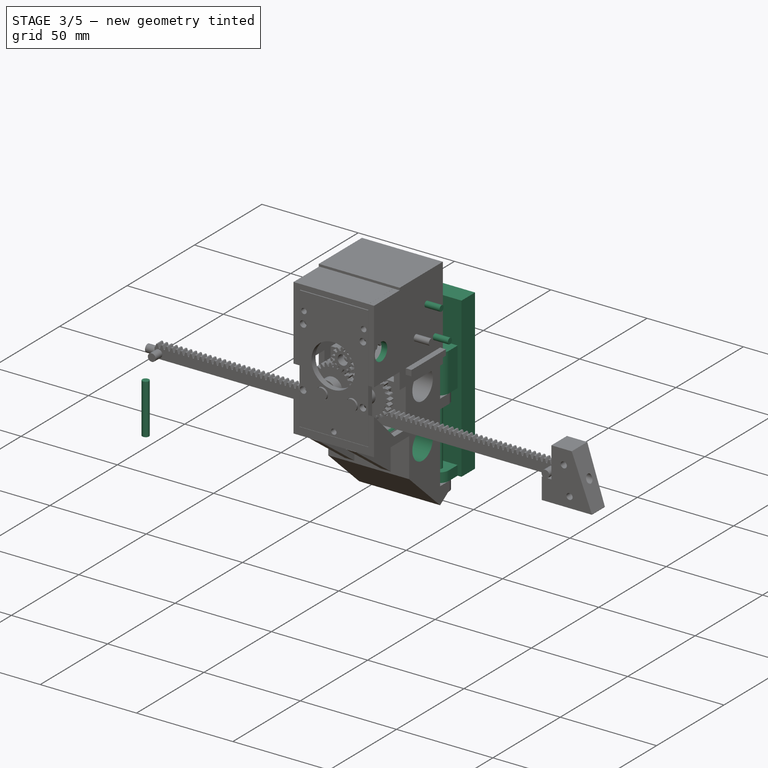
[diagram: stage 3 of 5 — iso view after this stage's code; geometry added in this stage tinted green]
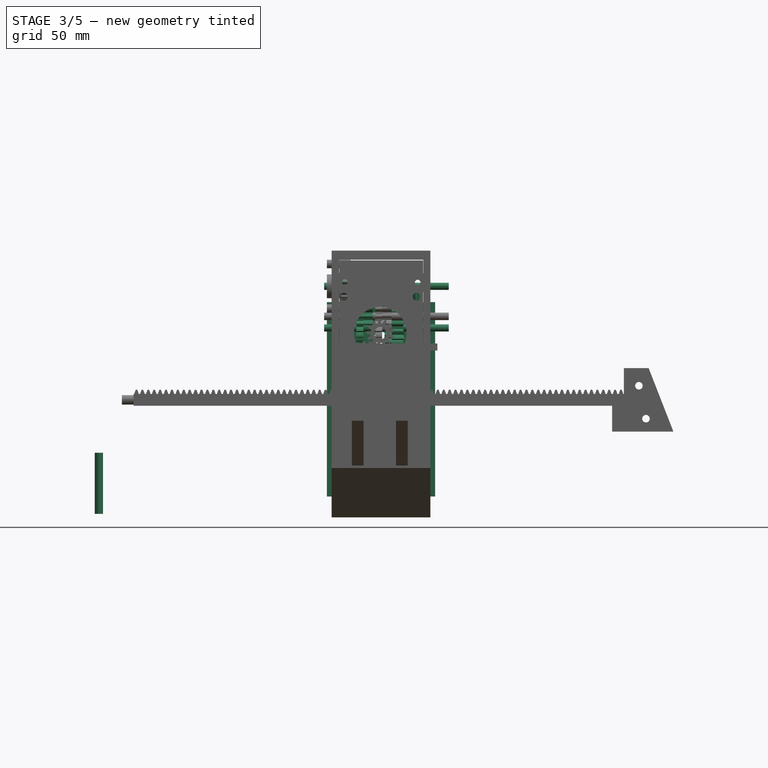
[diagram: stage 3 of 5 — front view after this stage's code; geometry added in this stage tinted green]
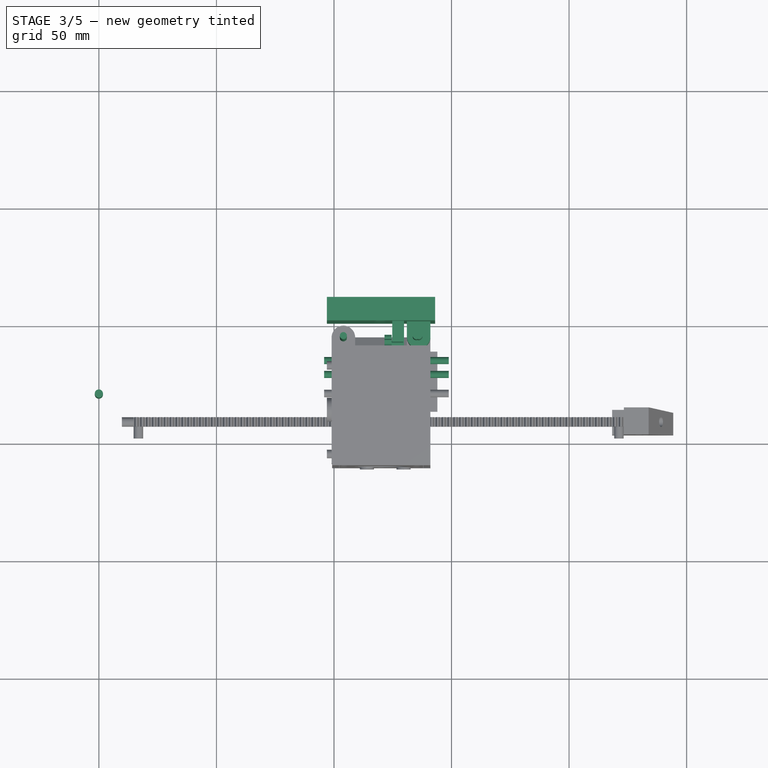
[diagram: stage 3 of 5 — top view after this stage's code; geometry added in this stage tinted green]
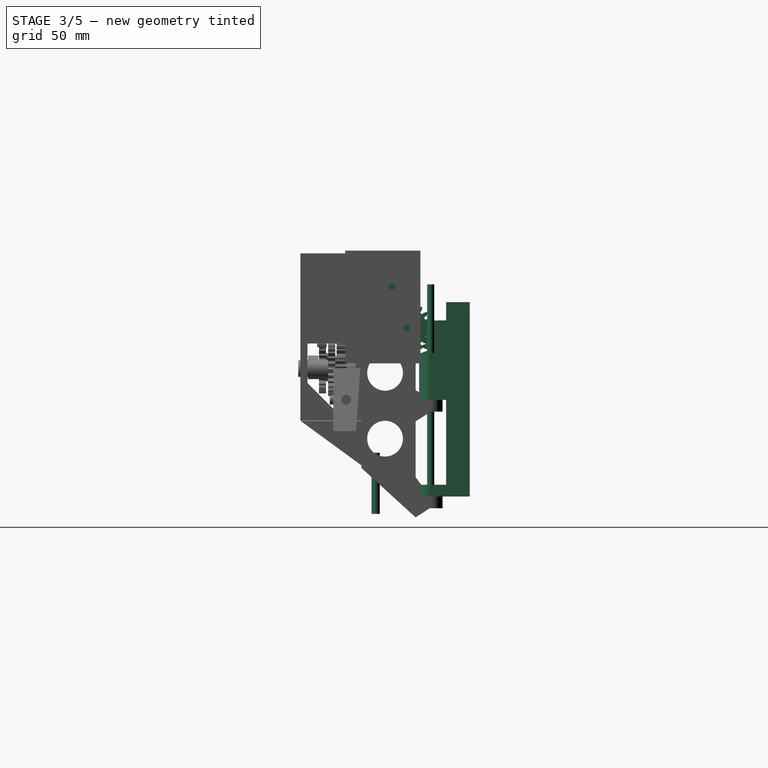
[diagram: stage 3 of 5 — right view after this stage's code; geometry added in this stage tinted green]
FEATURE [Part::Cylinder] Cylinder109  label="Цилиндр098"
  Angle = 360
  AttacherType = Attacher::AttachEngine3D
  Height = 45
  Placement = pos=(96.2,25,32) rot=(0.57735,0.57735,0.57735;2.0944rad)
  Radius = 7.6
FEATURE [Part::FeaturePython] InvoluteGear006  # WARN: FeaturePython — macro-defined, semantics opaque (R4)
  Placement = pos=(116.5,27.9,96.8) rot=(-0.528481,0.664391,-0.528481;1.96874rad)
  backlash = 0
  beta = 0
  clearance = 0.25
  double_helix = false
  dw = 10
  head = 0
  height = 4
  module = 1
  numpoints = 6
  pressure_angle = 20
  properties_from_tool = true
  reversed_backlash = false
  shift = 0
  simple = false
  teeth = 10
  transverse_pitch = 3.14159
  undercut = false
FEATURE [Part::FeaturePython] InvoluteGear016  # WARN: FeaturePython — macro-defined, semantics opaque (R4)
  Placement = pos=(108.5,27.9,96.8) rot=(0.57735,-0.57735,0.57735;4.18879rad)
  backlash = 0
  beta = 0
  clearance = 0.25
  double_helix = false
  dw = 10
  head = 0
  height = 4
  module = 1
  numpoints = 6
  pressure_angle = 20
  properties_from_tool = true
  reversed_backlash = false
  shift = 0
  simple = false
  teeth = 10
  transverse_pitch = 3.14159
  undercut = false
FEATURE [Part::FeaturePython] InvoluteGear017  # WARN: FeaturePython — macro-defined, semantics opaque (R4)
  Placement = pos=(105.5,28,96.8) rot=(0.57735,-0.57735,0.57735;4.18879rad)
  backlash = 0
  beta = 0
  clearance = 0.25
  double_helix = false
  dw = 20
  head = 0
  height = 3
  module = 1
  numpoints = 6
  pressure_angle = 20
  properties_from_tool = true
  reversed_backlash = false
  shift = 0
  simple = false
  teeth = 20
  transverse_pitch = 3.14159
  undercut = false
FEATURE [Part::FeaturePython] InvoluteGear005  # WARN: FeaturePython — macro-defined, semantics opaque (R4)
  Placement = pos=(113.5,28,96.8) rot=(0.57735,-0.57735,0.57735;4.18879rad)
  backlash = 0
  beta = 0
  clearance = 0.25
  double_helix = false
  dw = 20
  head = 0
  height = 3
  module = 1
  numpoints = 6
  pressure_angle = 20
  properties_from_tool = true
  reversed_backlash = false
  shift = 0
  simple = false
  teeth = 20
  transverse_pitch = 3.14159
  undercut = false
FEATURE [Part::FeaturePython] InvoluteGear019  # WARN: FeaturePython — macro-defined, semantics opaque (R4)
  Placement = pos=(120.5,20,84) rot=(0.583952,-0.563916,0.583952;4.16852rad)
  backlash = 0
  beta = 0
  clearance = 0.25
  double_helix = false
  dw = 10
  head = 0
  height = 4
  module = 1
  numpoints = 6
  pressure_angle = 20
  properties_from_tool = true
  reversed_backlash = false
  shift = 0
  simple = false
  teeth = 10
  transverse_pitch = 3.14159
  undercut = false
FEATURE [Part::FeaturePython] InvoluteGear023  # WARN: FeaturePython — macro-defined, semantics opaque (R4)
  Placement = pos=(112.5,20,84) rot=(0.57735,-0.57735,0.57735;4.18879rad)
  backlash = 0
  beta = 0
  clearance = 0.25
  double_helix = false
  dw = 10
  head = 0
  height = 4
  module = 1
  numpoints = 6
  pressure_angle = 20
  properties_from_tool = true
  reversed_backlash = false
  shift = 0
  simple = false
  teeth = 10
  transverse_pitch = 3.14159
  undercut = false
FEATURE [Part::FeaturePython] InvoluteGear024  # WARN: FeaturePython — macro-defined, semantics opaque (R4)
  Placement = pos=(109.5,20,84) rot=(0.57735,-0.57735,0.57735;4.18879rad)
  backlash = 0
  beta = 0
  clearance = 0.25
  double_helix = false
  dw = 20
  head = 0
  height = 3
  module = 1
  numpoints = 6
  pressure_angle = 20
  properties_from_tool = true
  reversed_backlash = false
  shift = 0
  simple = false
  teeth = 20
  transverse_pitch = 3.14159
  undercut = false
FEATURE [Part::Cylinder] Cylinder167  label="Направляющая_3мм_003"
  Angle = 360
  AttacherType = Attacher::AttachEngine3D
  Height = 90
  Placement = pos=(136.1,44.4,-0.3) rot=(0,0,1;0rad)
  Radius = 1.6
FEATURE [Part::Cylinder] Cylinder168  label="Направляющая_3мм_004"
  Angle = 360
  AttacherType = Attacher::AttachEngine3D
  Height = 90
  Placement = pos=(104,44.4,-2.8) rot=(0,0,1;0rad)
  Radius = 1.6
FEATURE [Part::Cylinder] Cylinder182  label="Цилиндр165"
  Angle = 360
  AttacherType = Attacher::AttachEngine3D
  Height = 28
  Placement = pos=(114,-11.9,62.4) rot=(-1,0,0;1.5708rad)
  Radius = 3.1
FEATURE [Part::Cylinder] Cylinder184  label="Цилиндр167"
  Angle = 360
  AttacherType = Attacher::AttachEngine3D
  Height = 42
  Placement = pos=(144.1,31.6,106.3) rot=(0,-1,0;1.5708rad)
  Radius = 3.6
FEATURE [Part::Extrusion] Extrude063
  Base = -> RegularPolygon014
  Dir = (0,0,1)
  DirMode = 0
  FaceMakerClass = Part::FaceMakerBullseye
  LengthFwd = 5.5
  LengthRev = 0
  Placement = pos=(116.9,90.5,74.9) rot=(-1,0,0;1.5708rad)
  Solid = true
  Symmetric = false
FEATURE [Part::Box] Box076  label="Куб076"
  AttacherType = Attacher::AttachEngine3D
  Height = 31.5
  Length = 5
  Placement = pos=(124.8,47.6,50.8) rot=(0,0,1;0rad)
  Width = 4
FEATURE [Part::Extrusion] Extrude064
  Base = -> RegularPolygon015
  Dir = (0,0,1)
  DirMode = 0
  FaceMakerClass = Part::FaceMakerBullseye
  LengthFwd = 5.5
  LengthRev = 0
  Placement = pos=(116.9,90.6,31.1) rot=(-1,0,0;1.5708rad)
  Solid = true
  Symmetric = false
FEATURE [Part::Cylinder] Cylinder157  label="Цилиндр142"
  Angle = 360
  AttacherType = Attacher::AttachEngine3D
  Height = 24
  Placement = pos=(116.9,81.9,31.1) rot=(-1,0,0;1.5708rad)
  Radius = 2.8
FEATURE [Part::Cylinder] Cylinder158  label="Цилиндр143"
  Angle = 360
  AttacherType = Attacher::AttachEngine3D
  Height = 32
  Placement = pos=(116.8,77.7,74.8) rot=(-1,0,0;1.5708rad)
  Radius = 2.8
FEATURE [Part::Box] Box075  label="Куб075"
  AttacherType = Attacher::AttachEngine3D
  Height = 82.7
  Length = 46
  Placement = pos=(94,88.6,7.4) rot=(0,0,1;0rad)
  Width = 10
FEATURE [Part::Cylinder] Cylinder186  label="Направляющая_3мм_005"
  Angle = 360
  AttacherType = Attacher::AttachEngine3D
  Height = 90
  Placement = pos=(135,44.4,7.4) rot=(0,0,1;0rad)
  Radius = 1.5
FEATURE [Part::Cylinder] Cylinder187  label="Направляющая_3мм_006"
  Angle = 360
  AttacherType = Attacher::AttachEngine3D
  Height = 90
  Placement = pos=(104,44.4,7.4) rot=(0,0,1;0rad)
  Radius = 1.5
FEATURE [Sketcher::SketchObject] Sketch051
  sketch-geometry (4):
    g0: ArcOfCircle CenterX=99 CenterY=83 CenterZ=0 NormalX=0 NormalY=0 NormalZ=1 AngleXU=0 Radius=5 StartAngle=3.14159 EndAngle=6.28319
    g1: LineSegment StartX=94 StartY=83 StartZ=0 EndX=94 EndY=89.5 EndZ=0
    g2: LineSegment StartX=104 StartY=83 StartZ=0 EndX=104 EndY=89.5 EndZ=0
    g3: LineSegment StartX=94 StartY=89.5 StartZ=0 EndX=104 EndY=89.5 EndZ=0
  constraints (13):
    c: DistanceX(g0) = 94
    c: DistanceY(g0) = 83
    c: Vertical(g1)
    c: Coincident(g1,g0)
    c: DistanceY(g1,g1) = 6.5
    c: Vertical(g2)
    c: DistanceY(g0,g0) = 0
    c: Radius(g0) = 5
    c: DistanceY(g0,g0) = 0
    c: Coincident(g2,g0)
    c: Equal(g2,g1)
    c: Coincident(g3,g2)
    c: Coincident(g3,g1)
FEATURE [Part::Extrusion] Extrude061
  Base = -> Sketch051
  Dir = (0,0,1)
  DirMode = 0
  FaceMakerClass = Part::FaceMakerBullseye
  LengthFwd = 5
  LengthRev = 0
  Placement = pos=(37,-38.5,7.4) rot=(0,0,1;0rad)
  Solid = true
  Symmetric = false
FEATURE [Sketcher::SketchObject] Sketch052
  sketch-geometry (4):
    g0: ArcOfCircle CenterX=99 CenterY=83 CenterZ=0 NormalX=0 NormalY=0 NormalZ=1 AngleXU=0 Radius=5 StartAngle=3.14159 EndAngle=6.28319
    g1: LineSegment StartX=94 StartY=83 StartZ=0 EndX=94 EndY=89.5 EndZ=0
    g2: LineSegment StartX=104 StartY=83 StartZ=0 EndX=104 EndY=89.5 EndZ=0
    g3: LineSegment StartX=94 StartY=89.5 StartZ=0 EndX=104 EndY=89.5 EndZ=0
  constraints (13):
    c: DistanceX(g0) = 94
    c: DistanceY(g0) = 83
    c: Vertical(g1)
    c: Coincident(g1,g0)
    c: DistanceY(g1,g1) = 6.5
    c: Vertical(g2)
    c: DistanceY(g0,g0) = 0
    c: Radius(g0) = 5
    c: DistanceY(g0,g0) = 0
    c: Coincident(g2,g0)
    c: Equal(g2,g1)
    c: Coincident(g3,g2)
    c: Coincident(g3,g1)
FEATURE [Part::Extrusion] Extrude062
  Base = -> Sketch052
  Dir = (0,0,1)
  DirMode = 0
  FaceMakerClass = Part::FaceMakerBullseye
  LengthFwd = 20
  LengthRev = 0
  Placement = pos=(37,-38.5,48.5) rot=(0,0,1;0rad)
  Solid = true
  Symmetric = false
FEATURE [Part::Cut] Cut201
  Base = -> Box075
  Tool = -> Cylinder158
FEATURE [Part::Cut] Cut202
  Base = -> Cut201
  Tool = -> Cylinder157
FEATURE [Part::Cut] Cut203
  Base = -> Cut202
  Tool = -> Extrude063
FEATURE [Part::Cut] Cut204
  Base = -> Cut203
  Placement = pos=(3,-37.6,0) rot=(0,0,1;0rad)
  Tool = -> Extrude064
FEATURE [Part::FeaturePython] InvoluteRack  # WARN: FeaturePython — macro-defined, semantics opaque (R4)
  Placement = pos=(129.8,41.6,52.4) rot=(0.57735,-0.57735,-0.57735;2.0944rad)
  add_endings = true
  beta = 0
  clearance = 0.25
  double_helix = false
  head = 0
  height = 5
  module = 1
  pressure_angle = 20
  properties_from_tool = true
  simplified = false
  teeth = 10
  thickness = 5
  transverse_pitch = 3.14159
FEATURE [Part::Cylinder] Cylinder190  label="Цилиндр171"
  Angle = 360
  AttacherType = Attacher::AttachEngine3D
  Height = 26
  Placement = pos=(0,21,0) rot=(0,0,1;0rad)
  Radius = 1.75
FEATURE [Part::FeaturePython] InvoluteGear015  # WARN: FeaturePython — macro-defined, semantics opaque (R4)
  Placement = pos=(129.5,34.1,79.2) rot=(0.043578,-0.998099,-0.043578;1.5727rad)
  backlash = 0
  beta = 0
  clearance = 0.25
  double_helix = false
  dw = 15
  head = 0
  height = 5
  module = 1
  numpoints = 6
  pressure_angle = 20
  properties_from_tool = true
  reversed_backlash = false
  shift = 0
  simple = false
  teeth = 15
  transverse_pitch = 3.14159
  undercut = false
FEATURE [Part::FeaturePython] InvoluteGear018  # WARN: FeaturePython — macro-defined, semantics opaque (R4)
  Placement = pos=(121.5,34.1,79.2) rot=(0.57735,-0.57735,0.577351;4.18879rad)
  backlash = 0
  beta = 0
  clearance = 0.25
  double_helix = false
  dw = 20
  head = 0
  height = 3
  module = 1
  numpoints = 6
  pressure_angle = 20
  properties_from_tool = true
  reversed_backlash = false
  shift = 0
  simple = false
  teeth = 20
  transverse_pitch = 3.14159
  undercut = false
FEATURE [Part::Cylinder] Cylinder149  label="Цилиндр134"
  Angle = 360
  AttacherType = Attacher::AttachEngine3D
  Height = 53
  Placement = pos=(95.8,27.9,96.8) rot=(0,1,0;1.5708rad)
  Radius = 1.6
FEATURE [Part::FeaturePython] InvoluteGear020  # WARN: FeaturePython — macro-defined, semantics opaque (R4)
  Placement = pos=(117.5,20,84) rot=(0.57735,-0.57735,0.57735;4.18879rad)
  backlash = 0
  beta = 0
  clearance = 0.25
  double_helix = false
  dw = 20
  head = 0
  height = 3
  module = 1
  numpoints = 6
  pressure_angle = 20
  properties_from_tool = true
  reversed_backlash = false
  shift = 0
  simple = false
  teeth = 20
  transverse_pitch = 3.14159
  undercut = false
FEATURE [Part::FeaturePython] InvoluteGear004  # WARN: FeaturePython — macro-defined, semantics opaque (R4)
  Placement = pos=(102.9,12.9,96.8) rot=(-0.506732,0.697457,-0.506732;1.92356rad)
  backlash = 0
  beta = 0
  clearance = 0.25
  double_helix = false
  dw = 10
  head = 0
  height = 5
  module = 1
  numpoints = 6
  pressure_angle = 20
  properties_from_tool = true
  reversed_backlash = false
  shift = 0
  simple = false
  teeth = 10
  transverse_pitch = 3.14159
  undercut = false
FEATURE [Part::Cylinder] Cylinder191  label="Цилиндр172"
  Angle = 360
  AttacherType = Attacher::AttachEngine3D
  Height = 10
  Placement = pos=(100.2,12.9,96.8) rot=(0,1,0;1.5708rad)
  Radius = 1.6
FEATURE [Part::MultiFuse] Fusion104
  Shapes = -> [InvoluteGear015,InvoluteGear018]
FEATURE [Part::Cylinder] Cylinder192  label="Цилиндр173"
  Angle = 360
  AttacherType = Attacher::AttachEngine3D
  Height = 53
  Placement = pos=(95.8,34.1,79.2) rot=(0,1,0;1.5708rad)
  Radius = 1.6
FEATURE [Part::Cylinder] Cylinder193  label="Цилиндр174"
  Angle = 360
  AttacherType = Attacher::AttachEngine3D
  Height = 53
  Placement = pos=(95.8,20,84) rot=(0,1,0;1.5708rad)
  Radius = 1.6
FEATURE [Part::MultiFuse] Fusion105
  Shapes = -> [InvoluteGear019,InvoluteGear020]
FEATURE [Part::MultiFuse] Fusion106
  Shapes = -> [InvoluteGear023,InvoluteGear024]
FEATURE [Part::MultiFuse] Fusion107
  Shapes = -> [InvoluteGear006,InvoluteGear005]
FEATURE [Part::MultiFuse] Fusion108
  Shapes = -> [InvoluteGear017,InvoluteGear016]
FEATURE [Part::Cylinder] Cylinder194  label="Цилиндр175"
  Angle = 360
  AttacherType = Attacher::AttachEngine3D
  Height = 53
  Placement = pos=(95.8,34.1,79.1) rot=(0,1,0;1.5708rad)
  Radius = 1.5
FEATURE [Part::Cylinder] Cylinder195  label="Цилиндр176"
  Angle = 360
  AttacherType = Attacher::AttachEngine3D
  Height = 53
  Placement = pos=(95.8,27.9,96.8) rot=(0,1,0;1.5708rad)
  Radius = 1.6
FEATURE [Part::Cylinder] Cylinder197  label="Цилиндр178"
  Angle = 360
  AttacherType = Attacher::AttachEngine3D
  Height = 53
  Placement = pos=(95.8,20,84) rot=(0,1,0;1.5708rad)
  Radius = 1.6
FEATURE [Part::Cut] Cut230
  Base = -> Fusion105
  Tool = -> Cylinder193
FEATURE [Part::Cut] Cut231
  Base = -> Fusion106
  Tool = -> Cylinder197
FEATURE [Part::Cut] Cut232
  Base = -> Fusion107
  Tool = -> Cylinder149
FEATURE [Part::Cut] Cut233
  Base = -> Fusion108
  Tool = -> Cylinder195
FEATURE [Part::Cut] Cut234
  Base = -> Fusion104
  Placement = pos=(0,0,-0.1) rot=(0,0,1;0rad)
  Tool = -> Cylinder192
FEATURE [Part::Cut] Cut235
  Base = -> InvoluteGear004
  Tool = -> Cylinder191
FEATURE [Part::Cylinder] Cylinder201  label="Ось шестерни Х003"
  Angle = 360
  AttacherType = Attacher::AttachEngine3D
  Height = 8
  Placement = pos=(105.3,4.3,43.5) rot=(-1,0,0;1.5708rad)
  Radius = 2.5
FEATURE [Part::Cylinder] Cylinder202  label="Ось шестерни Х004"
  Angle = 360
  AttacherType = Attacher::AttachEngine3D
  Height = 8
  Placement = pos=(135.3,4.3,43.5) rot=(-1,0,0;1.5708rad)
  Radius = 2.5
FEATURE [Part::Cylinder] Cylinder203  label="Цилиндр180"
  Angle = 360
  AttacherType = Attacher::AttachEngine3D
  Height = 28
  Placement = pos=(129.6,-11.9,61.3) rot=(-1,0,0;1.5708rad)
  Radius = 3.1
FEATURE [Part::Cylinder] Cylinder207  label="Цилиндр184"
  Angle = 360
  AttacherType = Attacher::AttachEngine3D
  Height = 53
  Placement = pos=(95.8,20,84) rot=(0,1,0;1.5708rad)
  Radius = 1.5
FEATURE [Part::Cylinder] Cylinder208  label="Цилиндр185"
  Angle = 360
  AttacherType = Attacher::AttachEngine3D
  Height = 53
  Placement = pos=(95.8,27.9,96.8) rot=(0,1,0;1.5708rad)
  Radius = 1.5
FEATURE [Part::Cylinder] Cylinder211  label="Цилиндр188"
  Angle = 360
  AttacherType = Attacher::AttachEngine3D
  Height = 10
  Placement = pos=(95.2,31.6,106.3) rot=(0,1,0;1.5708rad)
  Radius = 2
FEATURE [Part::Cut] Cut250
  Base = -> Cut249
  Tool = -> Cylinder210
FEATURE [Part::Cut] Cut251
  Base = -> Cut250
  Tool = -> Cylinder211
FEATURE [Part::Cut] Cut252
  Base = -> Cut251
  Tool = -> Cylinder212
FEATURE [Part::Cylinder] Cylinder213  label="Цилиндр190"
  Angle = 360
  AttacherType = Attacher::AttachEngine3D
  Height = 10
  Placement = pos=(144.1,-5.8,87.3) rot=(0,-1,0;1.5708rad)
  Radius = 4.6
FEATURE [Part::Cut] Cut253
  Base = -> Cut252
  Tool = -> Cylinder184
FEATURE [Part::Cut] Cut254
  Base = -> Cut253
  Tool = -> Cylinder213
FEATURE [Part::Cut] Cut255
  Base = -> Cut254
  Tool = -> Cylinder203
FEATURE [Part::Cut] Cut256
  Base = -> Cut255
  Tool = -> Cylinder182
FEATURE [Part::Cut] Cut257
  Base = -> Cut256
  Tool = -> Cylinder109
FEATURE [Part::Cylinder] Cylinder216  label="Направляющая_3мм_007"
  Angle = 360
  AttacherType = Attacher::AttachEngine3D
  Height = 90
  Placement = pos=(136.1,44.4,7.6) rot=(0,0,1;0rad)
  Radius = 1.5
FEATURE [Part::Cylinder] Cylinder217  label="Направляющая_3мм_008"
  Angle = 360
  AttacherType = Attacher::AttachEngine3D
  Height = 90
  Placement = pos=(104,44.4,7.4) rot=(0,0,1;0rad)
  Radius = 1.5
FEATURE [Part::Cut] Cut258
  Base = -> Cut257
  Tool = -> Cylinder167
FEATURE [Part::Cut] Cut259  label="Основной корпус"
  Base = -> Cut258
  Tool = -> Cylinder168
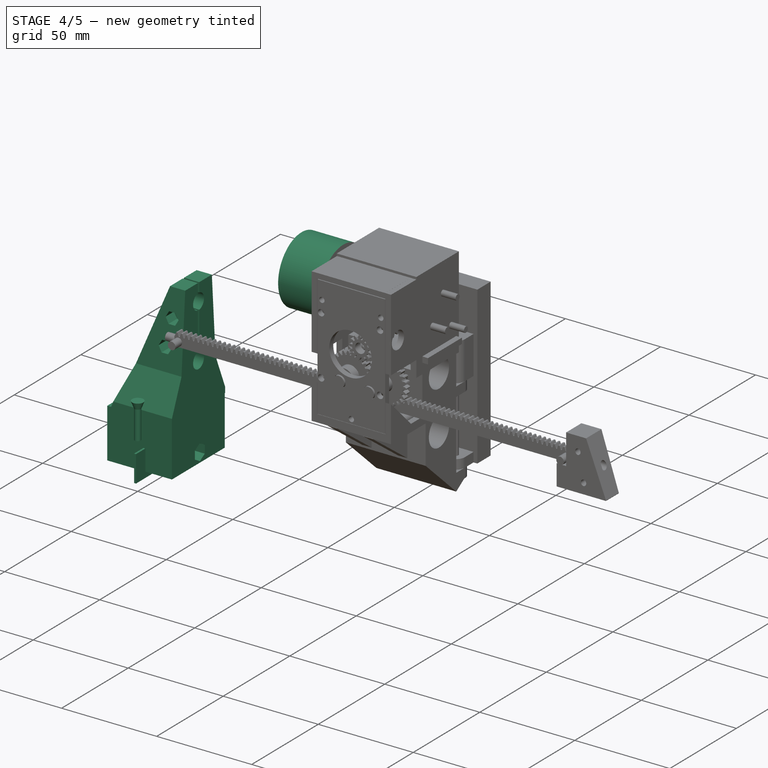
[diagram: stage 4 of 5 — iso view after this stage's code; geometry added in this stage tinted green]
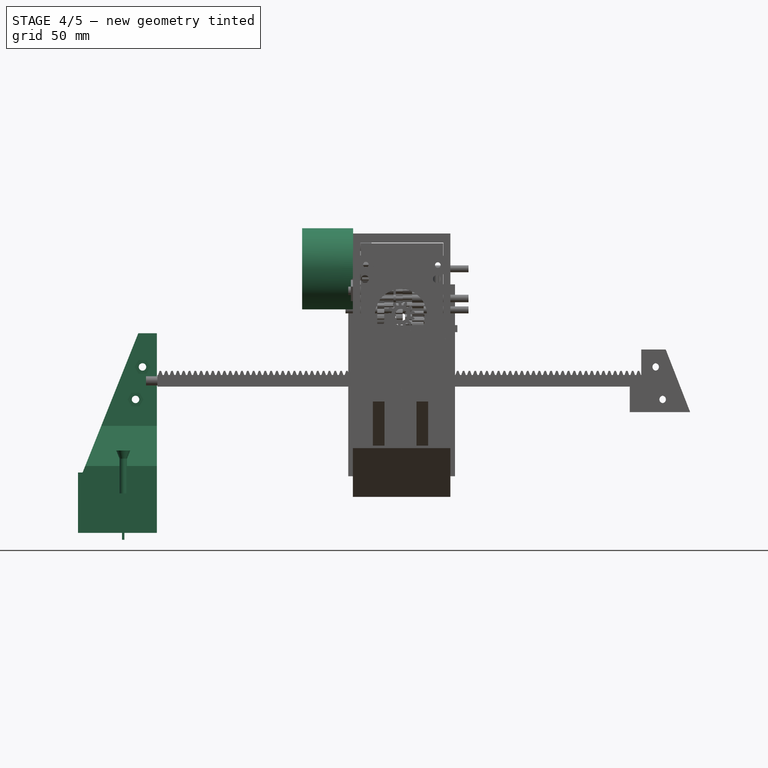
[diagram: stage 4 of 5 — front view after this stage's code; geometry added in this stage tinted green]
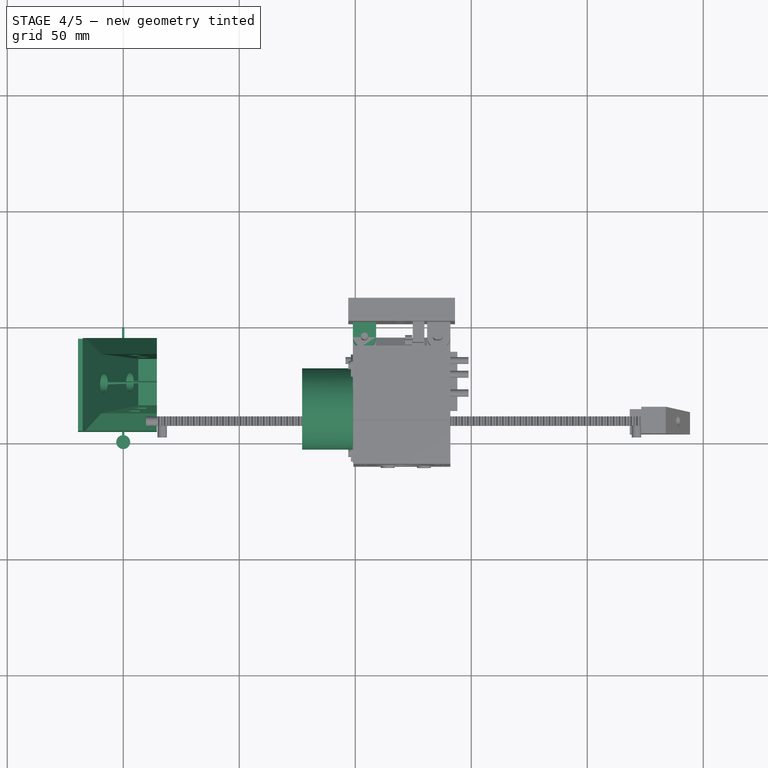
[diagram: stage 4 of 5 — top view after this stage's code; geometry added in this stage tinted green]
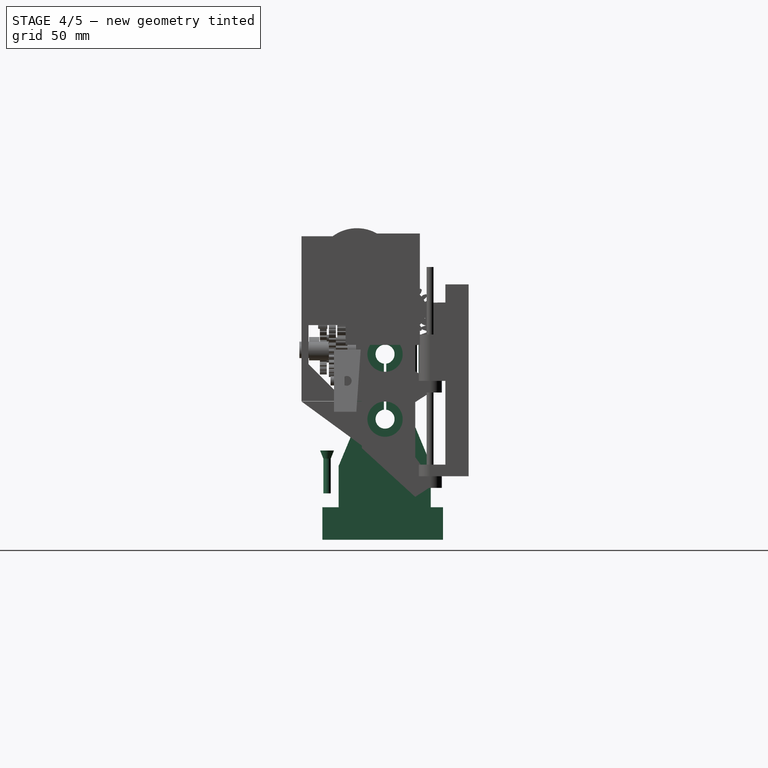
[diagram: stage 4 of 5 — right view after this stage's code; geometry added in this stage tinted green]
FEATURE [Part::Box] Box029  label="Куб029"
  AttacherType = Attacher::AttachEngine3D
  Height = 26
  Length = 32
  Placement = pos=(-19.5,5,-17) rot=(0,0,1;0rad)
  Width = 39.7
FEATURE [Part::Cylinder] Cylinder094  label="Цилиндр085"
  Angle = 360
  AttacherType = Attacher::AttachEngine3D
  Height = 50
  Placement = pos=(-24,26,-8) rot=(0,1,0;1.5708rad)
  Radius = 2.2
FEATURE [Part::Extrusion] Extrude025  label="Гайка М005"
  Base = -> RegularPolygon006
  Dir = (0,0,1)
  DirMode = 0
  FaceMakerClass = Part::FaceMakerBullseye
  LengthFwd = 8
  LengthRev = 0
  Placement = pos=(5,26,-12) rot=(0,1,0;1.5708rad)
  Solid = true
  Symmetric = false
FEATURE [Part::Box] Box031  label="Куб031"
  AttacherType = Attacher::AttachEngine3D
  Height = 14
  Length = 1
  Placement = pos=(-0.5,-2,-20) rot=(0,0,1;0rad)
  Width = 52
FEATURE [Part::Cone] Cone007  label="Конус007"
  Angle = 360
  AttacherType = Attacher::AttachEngine3D
  Height = 3.5
  Placement = pos=(0,0,15) rot=(0,0,1;0rad)
  Radius1 = 1.6
  Radius2 = 3
FEATURE [Part::Cone] Cone008  label="Конус008"
  Angle = 360
  AttacherType = Attacher::AttachEngine3D
  Height = 3.5
  Placement = pos=(0,0,15) rot=(0,0,1;0rad)
  Radius1 = 1.6
  Radius2 = 3
FEATURE [Part::Cone] Cone009  label="Конус009"
  Angle = 360
  AttacherType = Attacher::AttachEngine3D
  Height = 5
  Placement = pos=(-24,26,-8) rot=(0,-1,0;1.5708rad)
  Radius1 = 2.2
  Radius2 = 4
FEATURE [Part::MultiFuse] Fusion039  label="Винт М4х50 пот001"
  Placement = pos=(9,0,-4) rot=(0,0,1;0rad)
  Shapes = -> [Cone009,Cylinder094]
FEATURE [Part::Cut] Cut079
  Base = -> Box029
  Tool = -> Fusion039
FEATURE [Part::Cut] Cut078
  Base = -> Cut079
  Tool = -> Extrude025
FEATURE [Part::Cylinder] Cylinder096  label="Цилиндр087"
  Angle = 360
  AttacherType = Attacher::AttachEngine3D
  Height = 15
  Radius = 1.6
FEATURE [Sketcher::SketchObject] Sketch020
  Placement = pos=(0,0,0) rot=(1,0,0;1.5708rad)
  sketch-geometry (4):
    g0: LineSegment StartX=-15 StartY=9 StartZ=0 EndX=17 EndY=9 EndZ=0
    g1: LineSegment StartX=17 StartY=9 StartZ=0 EndX=17 EndY=69 EndZ=0
    g2: LineSegment StartX=17 StartY=69 StartZ=0 EndX=9 EndY=69 EndZ=0
    g3: LineSegment StartX=9 StartY=69 StartZ=0 EndX=-15 EndY=9 EndZ=0
  constraints (12):
    c: Horizontal(g0)
    c: DistanceX(g0) = -15
    c: DistanceY(g0) = 9
    c: DistanceX(g0,g0) = 32
    c: Vertical(g1)
    c: Coincident(g1,g0)
    c: Horizontal(g2)
    c: DistanceY(g1,g1) = 60
    c: Coincident(g2,g1)
    c: DistanceX(g2,g2) = 8
    c: Coincident(g3,g2)
    c: Coincident(g3,g0)
FEATURE [Sketcher::SketchObject] Sketch021
  Placement = pos=(0,0,0) rot=(0.57735,0.57735,0.57735;2.0944rad)
  sketch-geometry (4):
    g0: LineSegment StartX=15 StartY=69 StartZ=0 EndX=12.2079 EndY=29.0976 EndZ=0
    g1: LineSegment StartX=12.2079 StartY=29.0976 StartZ=0 EndX=4.204 EndY=9.91667 EndZ=0
    g2: LineSegment StartX=4.204 StartY=9.91667 StartZ=0 EndX=4.204 EndY=69 EndZ=0
    g3: LineSegment StartX=15 StartY=69 StartZ=0 EndX=4.204 EndY=69 EndZ=0
  constraints (12):
    c: DistanceX(g0) = 15
    c: DistanceY(g0) = 69
    c: Distance(g0) = 40
    c: Coincident(g1,g0)
    c: Vertical(g2)
    c: Coincident(g2,g1)
    c: Horizontal(g3)
    c: Coincident(g3,g0)
    c: Coincident(g2,g3)
    c: DistanceX(g1) = 4.204
    c: DistanceY(g1) = 9.91667
    c: Angle(g1,g2) = 0.395317
FEATURE [Sketcher::SketchObject] Sketch022
  Placement = pos=(0,0,0) rot=(0.57735,0.57735,0.57735;2.0944rad)
  sketch-geometry (4):
    g0: LineSegment StartX=15 StartY=69 StartZ=0 EndX=12.2079 EndY=29.0976 EndZ=0
    g1: LineSegment StartX=12.2079 StartY=29.0976 StartZ=0 EndX=4.204 EndY=9.91667 EndZ=0
    g2: LineSegment StartX=4.204 StartY=9.91667 StartZ=0 EndX=4.204 EndY=69 EndZ=0
    g3: LineSegment StartX=15 StartY=69 StartZ=0 EndX=4.204 EndY=69 EndZ=0
  constraints (12):
    c: DistanceX(g0) = 15
    c: DistanceY(g0) = 69
    c: Distance(g0) = 40
    c: Coincident(g1,g0)
    c: Vertical(g2)
    c: Coincident(g2,g1)
    c: Horizontal(g3)
    c: Coincident(g3,g0)
    c: Coincident(g2,g3)
    c: DistanceX(g1) = 4.204
    c: DistanceY(g1) = 9.91667
    c: Angle(g1,g2) = 0.395317
FEATURE [Part::Box] Box033  label="Куб033"
  AttacherType = Attacher::AttachEngine3D
  Height = 26
  Length = 32
  Placement = pos=(-19.5,5,-17) rot=(0,0,1;0rad)
  Width = 39.7
FEATURE [Part::Cylinder] Cylinder097  label="Направляющая009"
  Angle = 360
  AttacherType = Attacher::AttachEngine3D
  Height = 240
  Placement = pos=(-33,25,32) rot=(0.57735,-0.57735,0.57735;4.18879rad)
  Radius = 4.1
FEATURE [Part::Extrusion] Extrude027
  Base = -> Sketch020
  Dir = (0,1,0)
  DirMode = 0
  FaceMakerClass = Part::FaceMakerBullseye
  LengthFwd = 40
  LengthRev = 0
  Placement = pos=(0,5,0) rot=(0,0,1;0rad)
  Solid = true
  Symmetric = false
FEATURE [Part::Extrusion] Extrude028
  Base = -> Sketch022
  Dir = (1,0,0)
  DirMode = 0
  FaceMakerClass = Part::FaceMakerBullseye
  LengthFwd = 50
  LengthRev = 0
  Placement = pos=(-19,0,0) rot=(0,0,1;0rad)
  Solid = true
  Symmetric = false
FEATURE [Part::Cut] Cut089
  Base = -> Extrude027
  Tool = -> Extrude028
FEATURE [Part::Cylinder] Cylinder098  label="Направляющая010"
  Angle = 360
  AttacherType = Attacher::AttachEngine3D
  Height = 240
  Placement = pos=(-7.9,25,60) rot=(0.57735,-0.57735,0.57735;4.18879rad)
  Radius = 4.1
FEATURE [Part::Extrusion] Extrude029
  Base = -> Sketch021
  Dir = (1,0,0)
  DirMode = 0
  FaceMakerClass = Part::FaceMakerBullseye
  LengthFwd = 50
  LengthRev = 0
  Placement = pos=(28,50,0) rot=(0,0,1;3.14159rad)
  Solid = true
  Symmetric = false
FEATURE [Part::Cut] Cut083
  Base = -> Cut089
  Tool = -> Extrude029
FEATURE [Part::Cut] Cut090
  Base = -> Cut083
  Tool = -> Cylinder097
FEATURE [Part::Cut] Cut082
  Base = -> Cut090
  Tool = -> Cylinder098
FEATURE [Part::Box] Box034  label="Куб034"
  AttacherType = Attacher::AttachEngine3D
  Height = 48
  Length = 36
  Placement = pos=(-12,24.5,31) rot=(0,0,1;0rad)
  Width = 1
FEATURE [Part::Cut] Cut088
  Base = -> Cut082
  Tool = -> Box034
FEATURE [Part::Cylinder] Cylinder099  label="Цилиндр088"
  Angle = 360
  AttacherType = Attacher::AttachEngine3D
  Height = 15
  Radius = 1.6
FEATURE [Part::RegularPolygon] RegularPolygon007  label="Правильный многоугольник007"
  AttacherType = Attacher::AttachEngine3D
  Circumradius = 3.4
  Polygon = 6
FEATURE [Part::Extrusion] Extrude026
  Base = -> RegularPolygon007
  Dir = (0,0,1)
  DirMode = 0
  FaceMakerClass = Part::FaceMakerBullseye
  LengthFwd = 15
  LengthRev = 0
  Placement = pos=(7.8,6.8,40.5) rot=(-1,0,0;1.5708rad)
  Solid = true
  Symmetric = false
FEATURE [Part::RegularPolygon] RegularPolygon008  label="Правильный многоугольник008"
  AttacherType = Attacher::AttachEngine3D
  Circumradius = 3.4
  Polygon = 6
FEATURE [Part::RegularPolygon] RegularPolygon009  label="Правильный многоугольник009"
  AttacherType = Attacher::AttachEngine3D
  Circumradius = 4.3
  Polygon = 6
FEATURE [Part::Cone] Cone010  label="Конус010"
  Angle = 360
  AttacherType = Attacher::AttachEngine3D
  Height = 3.5
  Placement = pos=(0,0,15) rot=(0,0,1;0rad)
  Radius1 = 1.6
  Radius2 = 3
FEATURE [Part::MultiFuse] Fusion044  label="Винт М3 потай009"
  Placement = pos=(7.8,19,40.5) rot=(-1,0,0;1.5708rad)
  Shapes = -> [Cone010,Cylinder096]
FEATURE [Part::Cone] Cone011  label="Конус011"
  Angle = 360
  AttacherType = Attacher::AttachEngine3D
  Height = 3.5
  Placement = pos=(0,0,15) rot=(0,0,1;0rad)
  Radius1 = 1.6
  Radius2 = 3
FEATURE [Part::MultiFuse] Fusion041  label="Винт М3 потай008"
  Placement = pos=(10.8,18,54.5) rot=(-1,0,0;1.5708rad)
  Shapes = -> [Cone011,Cylinder099]
FEATURE [Part::Cone] Cone012  label="Конус012"
  Angle = 360
  AttacherType = Attacher::AttachEngine3D
  Height = 5
  Placement = pos=(-24,26,-8) rot=(0,-1,0;1.5708rad)
  Radius1 = 2.2
  Radius2 = 4
FEATURE [Part::Extrusion] Extrude030
  Base = -> RegularPolygon008
  Dir = (0,0,1)
  DirMode = 0
  FaceMakerClass = Part::FaceMakerBullseye
  LengthFwd = 15
  LengthRev = 0
  Placement = pos=(10.8,5.2,54.5) rot=(-1,0,0;1.5708rad)
  Solid = true
  Symmetric = false
FEATURE [Part::Cut] Cut084
  Base = -> Cut088
  Tool = -> Extrude030
FEATURE [Part::Cut] Cut085
  Base = -> Cut084
  Tool = -> Extrude026
FEATURE [Part::Cut] Cut086
  Base = -> Cut085
  Tool = -> Fusion044
FEATURE [Part::Cut] Cut087
  Base = -> Cut086
  Placement = pos=(-4.5,0,0) rot=(0,0,1;0rad)
  Tool = -> Fusion041
FEATURE [Part::Cylinder] Cylinder100  label="Цилиндр089"
  Angle = 360
  AttacherType = Attacher::AttachEngine3D
  Height = 50
  Placement = pos=(-24,26,-8) rot=(0,1,0;1.5708rad)
  Radius = 2.2
FEATURE [Part::MultiFuse] Fusion042  label="Винт М4х50 пот002"
  Placement = pos=(9,0,-4) rot=(0,0,1;0rad)
  Shapes = -> [Cone012,Cylinder100]
FEATURE [Part::Cut] Cut092
  Base = -> Box033
  Tool = -> Fusion042
FEATURE [Part::Extrusion] Extrude031  label="Гайка М006"
  Base = -> RegularPolygon009
  Dir = (0,0,1)
  DirMode = 0
  FaceMakerClass = Part::FaceMakerBullseye
  LengthFwd = 8
  LengthRev = 0
  Placement = pos=(5,26,-12) rot=(0,1,0;1.5708rad)
  Solid = true
  Symmetric = false
FEATURE [Part::Cut] Cut091
  Base = -> Cut092
  Tool = -> Extrude031
FEATURE [Part::Box] Box035  label="Куб035"
  AttacherType = Attacher::AttachEngine3D
  Height = 14
  Length = 1
  Placement = pos=(-0.5,-2,-20) rot=(0,0,1;0rad)
  Width = 52
FEATURE [Part::Cut] Cut093
  Base = -> Cut091
  Tool = -> Box035
FEATURE [Part::Cylinder] Cylinder101  label="Цилиндр090"
  Angle = 360
  AttacherType = Attacher::AttachEngine3D
  Height = 45
  Placement = pos=(0,47.5,7e-15) rot=(1,0,0;1.5708rad)
  Radius = 7.6
FEATURE [Part::Cut] Cut094
  Base = -> Cut093
  Tool = -> Cylinder101
FEATURE [Part::MultiFuse] Fusion043
  Placement = pos=(2,-6.2e-15,0) rot=(0,0,1;0rad)
  Shapes = -> [Cut094,Cut087]
FEATURE [Part::Cylinder] Cylinder111  label="Цилиндр100"
  Angle = 360
  AttacherType = Attacher::AttachEngine3D
  Height = 15
  Radius = 1.6
FEATURE [Part::Cone] Cone013  label="Конус013"
  Angle = 360
  AttacherType = Attacher::AttachEngine3D
  Height = 3.5
  Placement = pos=(0,0,15) rot=(0,0,1;0rad)
  Radius1 = 1.6
  Radius2 = 3
FEATURE [Part::MultiFuse] Fusion045  label="Винт М3 потай010"
  Placement = pos=(118.9,37.2,48.8) rot=(0,0,1;0rad)
  Shapes = -> [Cone013,Cylinder111]
FEATURE [Part::RegularPolygon] RegularPolygon010  label="Правильный многоугольник010"
  AttacherType = Attacher::AttachEngine3D
  Circumradius = 4.8
  Polygon = 6
FEATURE [Part::Cone] Cone014  label="Конус014"
  Angle = 360
  AttacherType = Attacher::AttachEngine3D
  Height = 3.5
  Placement = pos=(0,0,15) rot=(0,0,1;0rad)
  Radius1 = 1.6
  Radius2 = 3
FEATURE [Part::Cylinder] Cylinder113  label="Цилиндр102"
  Angle = 360
  AttacherType = Attacher::AttachEngine3D
  Height = 15
  Radius = 1.6
FEATURE [Sketcher::SketchObject] Sketch041
  Placement = pos=(0,0,0) rot=(1,0,0;1.5708rad)
  sketch-geometry (3):
    g0: LineSegment StartX=-8.16038 StartY=62.6472 StartZ=0 EndX=-8.16038 EndY=30.4195 EndZ=0
    g1: LineSegment StartX=-8.16038 StartY=62.6472 StartZ=0 EndX=4.41043 EndY=62.6472 EndZ=0
    g2: LineSegment StartX=4.41043 StartY=62.6472 StartZ=0 EndX=-8.16038 EndY=30.4195 EndZ=0
  constraints (7):
    c: Vertical(g0)
    c: Coincident(g0,g1)
    c: Horizontal(g1)
    c: DistanceX(g0) = -8.16038
    c: DistanceY(g0) = 30.4195
    c: Coincident(g0,g2)
    c: Coincident(g1,g2)
FEATURE [Sketcher::SketchObject] Sketch042
  Placement = pos=(0,0,0) rot=(0.57735,0.57735,0.57735;2.0944rad)
  sketch-geometry (4):
    g0: LineSegment StartX=10 StartY=62 StartZ=0 EndX=10 EndY=35 EndZ=0
    g1: LineSegment StartX=10 StartY=62 StartZ=0 EndX=14.5 EndY=62 EndZ=0
    g2: LineSegment StartX=10 StartY=35 StartZ=0 EndX=14.5 EndY=35 EndZ=0
    g3: LineSegment StartX=14.5 StartY=62 StartZ=0 EndX=14.5 EndY=35 EndZ=0
  constraints (11):
    c: Vertical(g0)
    c: DistanceX(g0) = 10
    c: DistanceY(g0) = 35
    c: Coincident(g1,g0)
    c: Horizontal(g1)
    c: DistanceY(g0,g0) = 27
    c: Coincident(g2,g0)
    c: DistanceX(g1,g1) = 4.5
    c: Coincident(g3,g2)
    c: Coincident(g3,g1)
    c: Equal(g2,g1)
FEATURE [Part::Extrusion] Extrude051
  Base = -> Sketch041
  Dir = (0,1,0)
  DirMode = 0
  FaceMakerClass = Part::FaceMakerBullseye
  LengthFwd = 10
  LengthRev = 0
  Placement = pos=(0,8,0) rot=(0,0,1;0rad)
  Solid = true
  Symmetric = false
FEATURE [Part::Extrusion] Extrude052
  Base = -> Sketch042
  Dir = (1,0,0)
  DirMode = 0
  FaceMakerClass = Part::FaceMakerBullseye
  LengthFwd = 21
  LengthRev = 0
  Placement = pos=(-7,0,0) rot=(0,0,1;0rad)
  Solid = true
  Symmetric = false
FEATURE [Part::Cut] Cut128
  Base = -> Extrude052
  Placement = pos=(0,-7,0) rot=(0,0,1;0rad)
  Tool = -> Extrude051
FEATURE [Part::Cylinder] Cylinder125  label="Цилиндр114"
  Angle = 360
  AttacherType = Attacher::AttachEngine3D
  Height = 40
  Placement = pos=(5.3,42,40.5) rot=(0.57735,0.57735,-0.57735;2.0944rad)
  Radius = 1.6
FEATURE [Part::Cylinder] Cylinder126  label="Цилиндр115"
  Angle = 360
  AttacherType = Attacher::AttachEngine3D
  Height = 40
  Placement = pos=(8.3,42,54.5) rot=(0.57735,0.57735,-0.57735;2.0944rad)
  Radius = 1.6
FEATURE [Part::Cut] Cut133
  Base = -> Cut128
  Tool = -> Cylinder126
FEATURE [Part::Cut] Cut134
  Base = -> Cut133
  Tool = -> Cylinder125
FEATURE [Part::Mirroring] Part__Mirroring001  label="Cut134 (Mirror #2)"
  Base = (3.81316,3.8147e-06,48.5)
  Normal = (0,1,-1.19209e-07)
  Placement = pos=(237.6,-3e-15,0) rot=(0,0,1;3.14159rad)
  Source = -> Cut134
FEATURE [Part::Cylinder] Cylinder128  label="Цилиндр117"
  Angle = 360
  AttacherType = Attacher::AttachEngine3D
  Height = 22
  Radius = 17.5
FEATURE [Part::Cylinder] Cylinder129  label="Цилиндр118"
  Angle = 360
  AttacherType = Attacher::AttachEngine3D
  Height = 26
  Placement = pos=(0,21,0) rot=(0,0,1;0rad)
  Radius = 1.75
FEATURE [Part::Cylinder] Cylinder130  label="Цилиндр119"
  Angle = 360
  AttacherType = Attacher::AttachEngine3D
  Height = 1
  Placement = pos=(0,0,22) rot=(0,0,1;0rad)
  Radius = 5
FEATURE [Part::Cylinder] Cylinder131  label="Цилиндр120"
  Angle = 360
  AttacherType = Attacher::AttachEngine3D
  Height = 26
  Placement = pos=(0,-21,0) rot=(0,0,1;0rad)
  Radius = 1.75
FEATURE [Part::Cylinder] Cylinder132  label="Цилиндр121"
  Angle = 360
  AttacherType = Attacher::AttachEngine3D
  Height = 10
  Placement = pos=(0,0,23) rot=(0,0,1;0rad)
  Radius = 1.5
FEATURE [Part::Box] Box066  label="Куб066"
  AttacherType = Attacher::AttachEngine3D
  Height = 1
  Length = 7
  Placement = pos=(-3.4,-23.6,22) rot=(0,0,1;0rad)
  Width = 48
FEATURE [Part::Cut] Cut182
  Base = -> Box066
  Tool = -> Cylinder131
FEATURE [Part::Cut] Cut183
  Base = -> Cut182
  Placement = pos=(0,0,-1) rot=(0,0,1;0rad)
  Tool = -> Cylinder129
FEATURE [Part::MultiFuse] Fusion092  label="Двигатель М35"
  Placement = pos=(77.1004,12.9006,96.793) rot=(0.227333,0.94691,0.227337;1.62532rad)
  Shapes = -> [Cylinder128,Cut183,Cylinder132,Cylinder130]
FEATURE [Part::RegularPolygon] RegularPolygon014  label="Правильный многоугольник014"
  AttacherType = Attacher::AttachEngine3D
  Circumradius = 4.8
  Polygon = 6
FEATURE [Part::RegularPolygon] RegularPolygon015  label="Правильный многоугольник015"
  AttacherType = Attacher::AttachEngine3D
  Circumradius = 4.8
  Polygon = 6
FEATURE [Sketcher::SketchObject] Sketch049
  sketch-geometry (4):
    g0: ArcOfCircle CenterX=99 CenterY=83 CenterZ=0 NormalX=0 NormalY=0 NormalZ=1 AngleXU=0 Radius=5 StartAngle=3.14159 EndAngle=6.28319
    g1: LineSegment StartX=94 StartY=83 StartZ=0 EndX=94 EndY=89.5 EndZ=0
    g2: LineSegment StartX=104 StartY=83 StartZ=0 EndX=104 EndY=89.5 EndZ=0
    g3: LineSegment StartX=94 StartY=89.5 StartZ=0 EndX=104 EndY=89.5 EndZ=0
  constraints (13):
    c: DistanceX(g0) = 94
    c: DistanceY(g0) = 83
    c: Vertical(g1)
    c: Coincident(g1,g0)
    c: DistanceY(g1,g1) = 6.5
    c: Vertical(g2)
    c: DistanceY(g0,g0) = 0
    c: Radius(g0) = 5
    c: DistanceY(g0,g0) = 0
    c: Coincident(g2,g0)
    c: Equal(g2,g1)
    c: Coincident(g3,g2)
    c: Coincident(g3,g1)
FEATURE [Sketcher::SketchObject] Sketch050
  sketch-geometry (4):
    g0: ArcOfCircle CenterX=99 CenterY=83 CenterZ=0 NormalX=0 NormalY=0 NormalZ=1 AngleXU=0 Radius=5 StartAngle=3.14159 EndAngle=6.28319
    g1: LineSegment StartX=94 StartY=83 StartZ=0 EndX=94 EndY=89.5 EndZ=0
    g2: LineSegment StartX=104 StartY=83 StartZ=0 EndX=104 EndY=89.5 EndZ=0
    g3: LineSegment StartX=94 StartY=89.5 StartZ=0 EndX=104 EndY=89.5 EndZ=0
  constraints (13):
    c: DistanceX(g0) = 94
    c: DistanceY(g0) = 83
    c: Vertical(g1)
    c: Coincident(g1,g0)
    c: DistanceY(g1,g1) = 6.5
    c: Vertical(g2)
    c: DistanceY(g0,g0) = 0
    c: Radius(g0) = 5
    c: DistanceY(g0,g0) = 0
    c: Coincident(g2,g0)
    c: Equal(g2,g1)
    c: Coincident(g3,g2)
    c: Coincident(g3,g1)
FEATURE [Part::Extrusion] Extrude059
  Base = -> Sketch049
  Dir = (0,0,1)
  DirMode = 0
  FaceMakerClass = Part::FaceMakerBullseye
  LengthFwd = 20
  LengthRev = 0
  Placement = pos=(5,-38.6,48.5) rot=(0,0,1;0rad)
  Solid = true
  Symmetric = false
FEATURE [Part::Extrusion] Extrude060
  Base = -> Sketch050
  Dir = (0,0,1)
  DirMode = 0
  FaceMakerClass = Part::FaceMakerBullseye
  LengthFwd = 5
  LengthRev = 0
  Placement = pos=(5,-38.5,7.4) rot=(0,0,1;0rad)
  Solid = true
  Symmetric = false
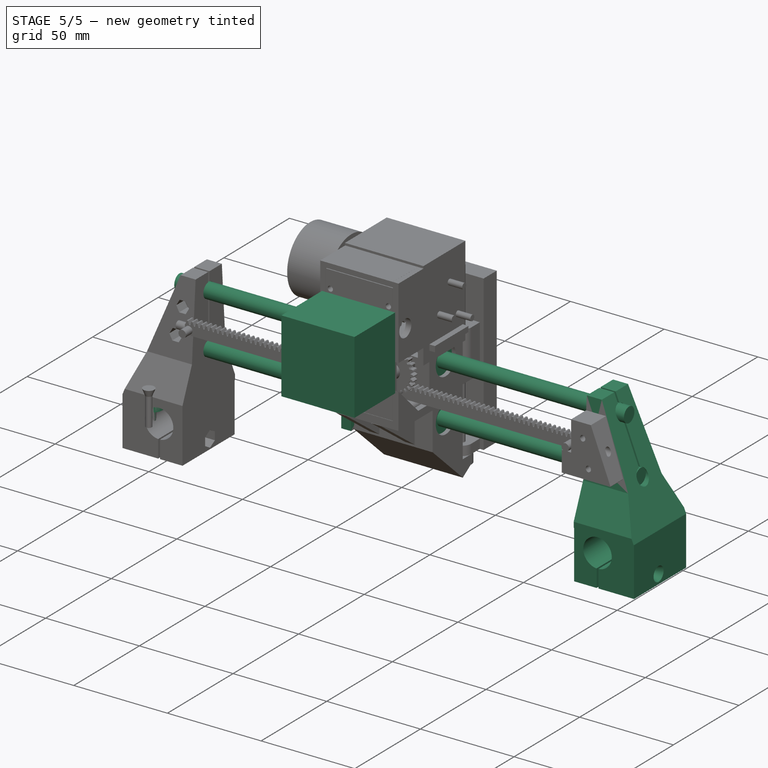
[diagram: stage 5 of 5 — iso view after this stage's code; geometry added in this stage tinted green]
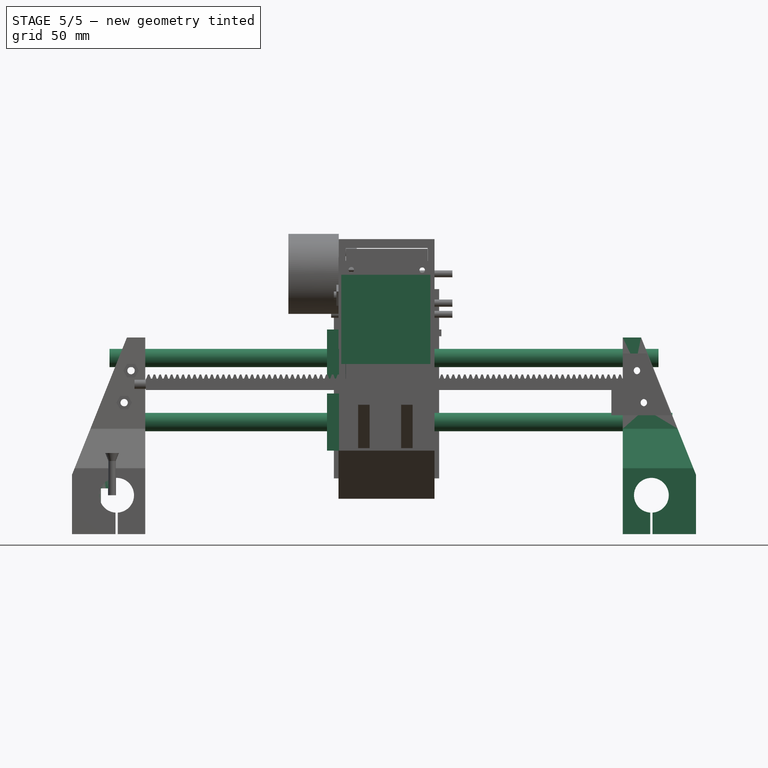
[diagram: stage 5 of 5 — front view after this stage's code; geometry added in this stage tinted green]
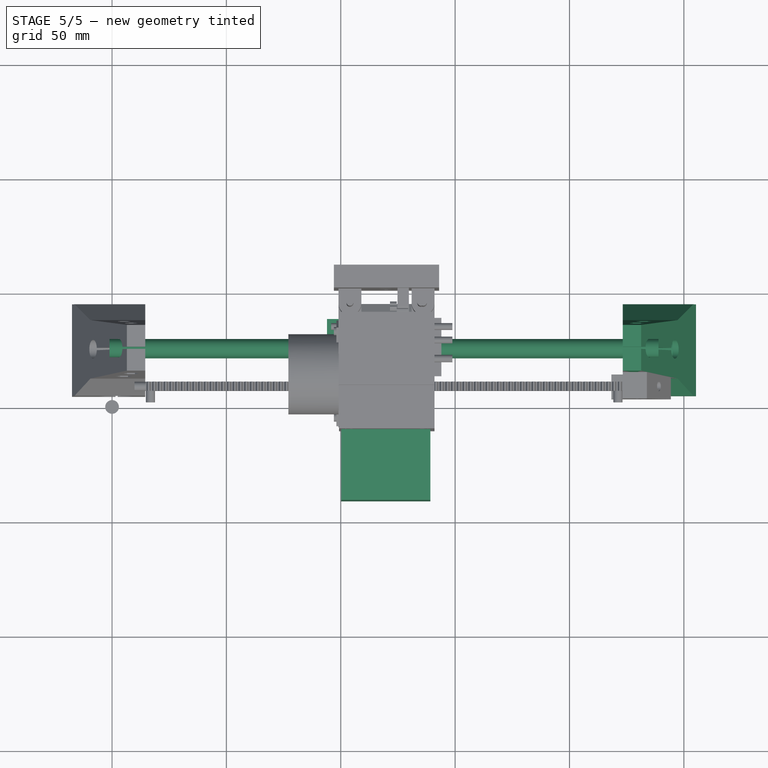
[diagram: stage 5 of 5 — top view after this stage's code; geometry added in this stage tinted green]
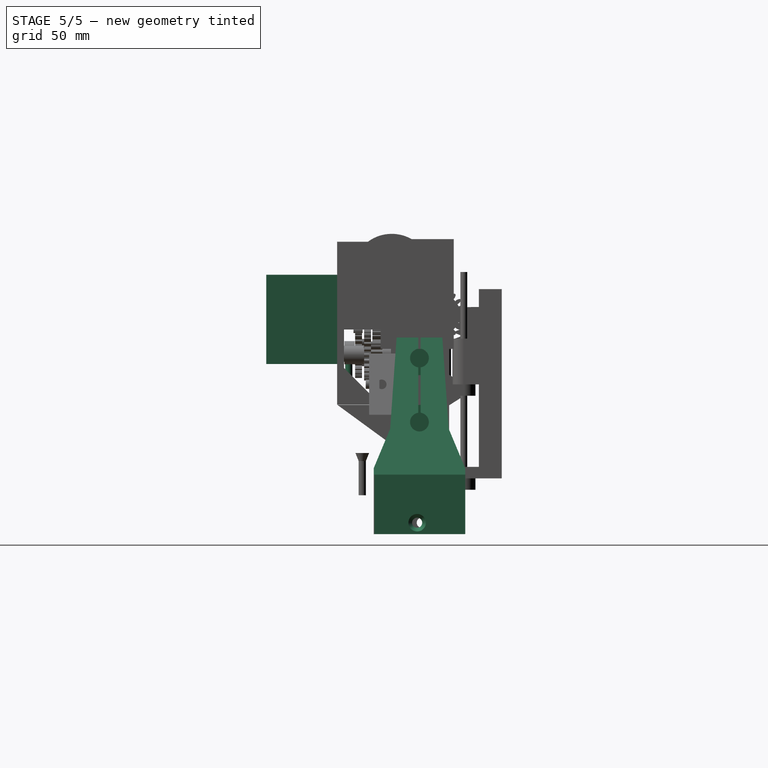
[diagram: stage 5 of 5 — right view after this stage's code; geometry added in this stage tinted green]
FEATURE [Part::Cylinder] Cylinder009  label="Цилиндр021"
  Angle = 360
  AttacherType = Attacher::AttachEngine3D
  Height = 10
  Placement = pos=(4,23,35) rot=(-1,0,0;1.5708rad)
  Radius = 1.5
FEATURE [Part::Cylinder] Cylinder011  label="Цилиндр009"
  Angle = 360
  AttacherType = Attacher::AttachEngine3D
  Height = 10
  Placement = pos=(35,23,4) rot=(-1,0,0;1.5708rad)
  Radius = 1.5
FEATURE [Part::Cylinder] Cylinder013  label="Цилиндр011"
  Angle = 360
  AttacherType = Attacher::AttachEngine3D
  Height = 2
  Placement = pos=(19.5,33,19.5) rot=(1,0,0;1.5708rad)
  Radius = 11
FEATURE [Part::Cylinder] Cylinder010  label="Цилиндр008"
  Angle = 360
  AttacherType = Attacher::AttachEngine3D
  Height = 10
  Placement = pos=(35,23,35) rot=(-1,0,0;1.5708rad)
  Radius = 1.5
FEATURE [Part::Box] Box001  label="Куб001"
  AttacherType = Attacher::AttachEngine3D
  Height = 39
  Length = 39
  Width = 31
FEATURE [Part::Cut] Cut005
  Base = -> Box001
  Tool = -> Cylinder009
FEATURE [Part::Cylinder] Cylinder012  label="Цилиндр010"
  Angle = 360
  AttacherType = Attacher::AttachEngine3D
  Height = 10
  Placement = pos=(4,23,4) rot=(-1,0,0;1.5708rad)
  Radius = 1.5
FEATURE [Part::Cut] Cut006
  Base = -> Cut005
  Tool = -> Cylinder012
FEATURE [Part::Cut] Cut007
  Base = -> Cut006
  Tool = -> Cylinder011
FEATURE [Part::Cut] Cut008
  Base = -> Cut007
  Tool = -> Cylinder010
FEATURE [Part::Cylinder] Cylinder014  label="Цилиндр012"
  Angle = 360
  AttacherType = Attacher::AttachEngine3D
  Height = 14
  Placement = pos=(19.5,33,19.5) rot=(-1,0,0;1.5708rad)
  Radius = 2.5
FEATURE [Part::MultiFuse] Fusion001  label="Шаговый двигатель"
  Placement = pos=(100.2,-42,57.4) rot=(0,0,1;0rad)
  Shapes = -> [Cut008,Cylinder013,Cylinder014]
FEATURE [Part::Cylinder] Cylinder020  label="Цилиндр018"
  Angle = 360
  AttacherType = Attacher::AttachEngine3D
  Height = 10
  Radius = 2.1
FEATURE [Part::Cylinder] Cylinder021  label="Цилиндр019"
  Angle = 360
  AttacherType = Attacher::AttachEngine3D
  Height = 6
  Placement = pos=(0,0,10) rot=(0,0,1;0rad)
  Radius = 6
FEATURE [Part::Cylinder] Cylinder024  label="Цилиндр023"
  Angle = 360
  AttacherType = Attacher::AttachEngine3D
  Height = 10
  Placement = pos=(103.6,-5.9,51) rot=(0,0,1;0rad)
  Radius = 1.6
FEATURE [Part::MultiFuse] Fusion004  label="Саморез001"
  Placement = pos=(-7,12,-7) rot=(0,0,1;0rad)
  Shapes = -> [Cylinder020,Cylinder021]
FEATURE [Sketcher::SketchObject] Sketch017
  Placement = pos=(0,0,0) rot=(1,0,0;1.5708rad)
  sketch-geometry (4):
    g0: LineSegment StartX=-15 StartY=9 StartZ=0 EndX=17 EndY=9 EndZ=0
    g1: LineSegment StartX=17 StartY=9 StartZ=0 EndX=17 EndY=69 EndZ=0
    g2: LineSegment StartX=17 StartY=69 StartZ=0 EndX=9 EndY=69 EndZ=0
    g3: LineSegment StartX=9 StartY=69 StartZ=0 EndX=-15 EndY=9 EndZ=0
  constraints (12):
    c: Horizontal(g0)
    c: DistanceX(g0) = -15
    c: DistanceY(g0) = 9
    c: DistanceX(g0,g0) = 32
    c: Vertical(g1)
    c: Coincident(g1,g0)
    c: Horizontal(g2)
    c: DistanceY(g1,g1) = 60
    c: Coincident(g2,g1)
    c: DistanceX(g2,g2) = 8
    c: Coincident(g3,g2)
    c: Coincident(g3,g0)
FEATURE [Sketcher::SketchObject] Sketch018
  Placement = pos=(0,0,0) rot=(0.57735,0.57735,0.57735;2.0944rad)
  sketch-geometry (4):
    g0: LineSegment StartX=15 StartY=69 StartZ=0 EndX=12.2079 EndY=29.0976 EndZ=0
    g1: LineSegment StartX=12.2079 StartY=29.0976 StartZ=0 EndX=4.204 EndY=9.91667 EndZ=0
    g2: LineSegment StartX=4.204 StartY=9.91667 StartZ=0 EndX=4.204 EndY=69 EndZ=0
    g3: LineSegment StartX=15 StartY=69 StartZ=0 EndX=4.204 EndY=69 EndZ=0
  constraints (12):
    c: DistanceX(g0) = 15
    c: DistanceY(g0) = 69
    c: Distance(g0) = 40
    c: Coincident(g1,g0)
    c: Vertical(g2)
    c: Coincident(g2,g1)
    c: Horizontal(g3)
    c: Coincident(g3,g0)
    c: Coincident(g2,g3)
    c: DistanceX(g1) = 4.204
    c: DistanceY(g1) = 9.91667
    c: Angle(g1,g2) = 0.395317
FEATURE [Part::RegularPolygon] RegularPolygon004  label="Правильный многоугольник004"
  AttacherType = Attacher::AttachEngine3D
  Circumradius = 3.4
  Polygon = 6
FEATURE [Part::RegularPolygon] RegularPolygon005  label="Правильный многоугольник005"
  AttacherType = Attacher::AttachEngine3D
  Circumradius = 3.4
  Polygon = 6
FEATURE [Part::RegularPolygon] RegularPolygon006  label="Правильный многоугольник006"
  AttacherType = Attacher::AttachEngine3D
  Circumradius = 4.3
  Polygon = 6
FEATURE [Part::Box] Box007  label="Куб007"
  AttacherType = Attacher::AttachEngine3D
  Height = 5.2
  Length = 25
  Width = 25
FEATURE [Part::Cylinder] Cylinder036  label="Цилиндр035"
  Angle = 360
  AttacherType = Attacher::AttachEngine3D
  Height = 60
  Placement = pos=(12.5,12.5,-7) rot=(0,0,1;0rad)
  Radius = 4
FEATURE [Part::Cylinder] Cylinder037  label="Цилиндр036"
  Angle = 360
  AttacherType = Attacher::AttachEngine3D
  Height = 10
  Placement = pos=(4,4,-2) rot=(0,0,1;0rad)
  Radius = 2
FEATURE [Part::Cylinder] Cylinder038  label="Цилиндр037"
  Angle = 360
  AttacherType = Attacher::AttachEngine3D
  Height = 10
  Placement = pos=(4,21,-2) rot=(0,0,1;0rad)
  Radius = 2
FEATURE [Part::Cylinder] Cylinder026  label="Цилиндр038"
  Angle = 360
  AttacherType = Attacher::AttachEngine3D
  Height = 10
  Placement = pos=(21,21,-2) rot=(0,0,1;0rad)
  Radius = 2
FEATURE [Part::Cylinder] Cylinder027  label="Цилиндр025"
  Angle = 360
  AttacherType = Attacher::AttachEngine3D
  Height = 10
  Placement = pos=(21,4,-2) rot=(0,0,1;0rad)
  Radius = 2
FEATURE [Part::Cylinder] Cylinder039  label="Цилиндр026"
  Angle = 360
  AttacherType = Attacher::AttachEngine3D
  Height = 40
  Placement = pos=(12.5,12.5,5) rot=(0,0,1;0rad)
  Radius = 7.5
FEATURE [Part::Box] Box008  label="Куб008"
  AttacherType = Attacher::AttachEngine3D
  Height = 5.2
  Length = 25
  Width = 25
FEATURE [Part::Cylinder] Cylinder040  label="Цилиндр039"
  Angle = 360
  AttacherType = Attacher::AttachEngine3D
  Height = 60
  Placement = pos=(12.5,12.5,-7) rot=(0,0,1;0rad)
  Radius = 4
FEATURE [Part::Cylinder] Cylinder041  label="Цилиндр040"
  Angle = 360
  AttacherType = Attacher::AttachEngine3D
  Height = 10
  Placement = pos=(4,4,-2) rot=(0,0,1;0rad)
  Radius = 2
FEATURE [Part::Cylinder] Cylinder042  label="Цилиндр041"
  Angle = 360
  AttacherType = Attacher::AttachEngine3D
  Height = 10
  Placement = pos=(4,21,-2) rot=(0,0,1;0rad)
  Radius = 2
FEATURE [Part::Cylinder] Cylinder043  label="Цилиндр042"
  Angle = 360
  AttacherType = Attacher::AttachEngine3D
  Height = 10
  Placement = pos=(21,21,-2) rot=(0,0,1;0rad)
  Radius = 2
FEATURE [Part::Cylinder] Cylinder044  label="Цилиндр043"
  Angle = 360
  AttacherType = Attacher::AttachEngine3D
  Height = 10
  Placement = pos=(21,4,-2) rot=(0,0,1;0rad)
  Radius = 2
FEATURE [Part::Cylinder] Cylinder045  label="Цилиндр044"
  Angle = 360
  AttacherType = Attacher::AttachEngine3D
  Height = 40
  Placement = pos=(12.5,12.5,5) rot=(0,0,1;0rad)
  Radius = 7.5
FEATURE [Part::Cylinder] Cylinder046  label="Направляющая004"
  Angle = 360
  AttacherType = Attacher::AttachEngine3D
  Height = 240
  Placement = pos=(5,25,32) rot=(0.57735,-0.57735,0.57735;4.18879rad)
  Radius = 4
FEATURE [Part::Cylinder] Cylinder047  label="Направляющая005"
  Angle = 360
  AttacherType = Attacher::AttachEngine3D
  Height = 240
  Placement = pos=(-1.1,25,60) rot=(0.57735,-0.57735,0.57735;4.18879rad)
  Radius = 4
FEATURE [Part::MultiFuse] Fusion008
  Shapes = -> [Box007,Cylinder039]
FEATURE [Part::Cut] Cut031
  Base = -> Fusion008
  Tool = -> Cylinder036
FEATURE [Part::Cut] Cut032
  Base = -> Cut031
  Tool = -> Cylinder037
FEATURE [Part::Cut] Cut029
  Base = -> Cut032
  Tool = -> Cylinder038
FEATURE [Part::Cut] Cut030
  Base = -> Cut029
  Tool = -> Cylinder027
FEATURE [Part::Cut] Cut033  label="Линейный подшипник001"
  Base = -> Cut030
  Placement = pos=(94,37.5,44.5) rot=(0.57735,-0.57735,0.57735;4.18879rad)
  Tool = -> Cylinder026
FEATURE [Part::MultiFuse] Fusion009
  Shapes = -> [Box008,Cylinder045]
FEATURE [Part::Cut] Cut037
  Base = -> Fusion009
  Tool = -> Cylinder040
FEATURE [Part::Cut] Cut036
  Base = -> Cut037
  Tool = -> Cylinder041
FEATURE [Part::Cut] Cut035
  Base = -> Cut036
  Tool = -> Cylinder042
FEATURE [Part::Cut] Cut034
  Base = -> Cut035
  Tool = -> Cylinder044
FEATURE [Part::Cut] Cut038  label="Линейный подшипник002"
  Base = -> Cut034
  Placement = pos=(94,37.5,72.5) rot=(0.57735,-0.57735,0.57735;4.18879rad)
  Tool = -> Cylinder043
FEATURE [Part::Cylinder] Cylinder090  label="Направляющая007"
  Angle = 360
  AttacherType = Attacher::AttachEngine3D
  Height = 240
  Placement = pos=(-33,25,32) rot=(0.57735,-0.57735,0.57735;4.18879rad)
  Radius = 4.1
FEATURE [Part::Extrusion] Extrude020
  Base = -> Sketch017
  Dir = (0,1,0)
  DirMode = 0
  FaceMakerClass = Part::FaceMakerBullseye
  LengthFwd = 40
  LengthRev = 0
  Placement = pos=(0,5,0) rot=(0,0,1;0rad)
  Solid = true
  Symmetric = false
FEATURE [Part::Cylinder] Cylinder091  label="Направляющая008"
  Angle = 360
  AttacherType = Attacher::AttachEngine3D
  Height = 240
  Placement = pos=(-7.9,25,60) rot=(0.57735,-0.57735,0.57735;4.18879rad)
  Radius = 4.1
FEATURE [Part::Extrusion] Extrude022
  Base = -> Sketch018
  Dir = (1,0,0)
  DirMode = 0
  FaceMakerClass = Part::FaceMakerBullseye
  LengthFwd = 50
  LengthRev = 0
  Placement = pos=(28,50,0) rot=(0,0,1;3.14159rad)
  Solid = true
  Symmetric = false
FEATURE [Part::Box] Box030  label="Куб030"
  AttacherType = Attacher::AttachEngine3D
  Height = 48
  Length = 36
  Placement = pos=(-12,24.5,31) rot=(0,0,1;0rad)
  Width = 1
FEATURE [Part::Cylinder] Cylinder092  label="Цилиндр083"
  Angle = 360
  AttacherType = Attacher::AttachEngine3D
  Height = 15
  Radius = 1.6
FEATURE [Part::Cylinder] Cylinder093  label="Цилиндр084"
  Angle = 360
  AttacherType = Attacher::AttachEngine3D
  Height = 15
  Radius = 1.6
FEATURE [Part::Extrusion] Extrude023
  Base = -> RegularPolygon005
  Dir = (0,0,1)
  DirMode = 0
  FaceMakerClass = Part::FaceMakerBullseye
  LengthFwd = 15
  LengthRev = 0
  Placement = pos=(7.8,6.8,40.5) rot=(-1,0,0;1.5708rad)
  Solid = true
  Symmetric = false
FEATURE [Part::Extrusion] Extrude024
  Base = -> RegularPolygon004
  Dir = (0,0,1)
  DirMode = 0
  FaceMakerClass = Part::FaceMakerBullseye
  LengthFwd = 15
  LengthRev = 0
  Placement = pos=(10.8,5.2,54.5) rot=(-1,0,0;1.5708rad)
  Solid = true
  Symmetric = false
FEATURE [Part::Cylinder] Cylinder095  label="Цилиндр086"
  Angle = 360
  AttacherType = Attacher::AttachEngine3D
  Height = 45
  Placement = pos=(0,47.5,7e-15) rot=(1,0,0;1.5708rad)
  Radius = 7.6
FEATURE [Sketcher::SketchObject] Sketch019
  Placement = pos=(0,0,0) rot=(0.57735,0.57735,0.57735;2.0944rad)
  sketch-geometry (4):
    g0: LineSegment StartX=15 StartY=69 StartZ=0 EndX=12.2079 EndY=29.0976 EndZ=0
    g1: LineSegment StartX=12.2079 StartY=29.0976 StartZ=0 EndX=4.204 EndY=9.91667 EndZ=0
    g2: LineSegment StartX=4.204 StartY=9.91667 StartZ=0 EndX=4.204 EndY=69 EndZ=0
    g3: LineSegment StartX=15 StartY=69 StartZ=0 EndX=4.204 EndY=69 EndZ=0
  constraints (12):
    c: DistanceX(g0) = 15
    c: DistanceY(g0) = 69
    c: Distance(g0) = 40
    c: Coincident(g1,g0)
    c: Vertical(g2)
    c: Coincident(g2,g1)
    c: Horizontal(g3)
    c: Coincident(g3,g0)
    c: Coincident(g2,g3)
    c: DistanceX(g1) = 4.204
    c: DistanceY(g1) = 9.91667
    c: Angle(g1,g2) = 0.395317
FEATURE [Part::Extrusion] Extrude021
  Base = -> Sketch019
  Dir = (1,0,0)
  DirMode = 0
  FaceMakerClass = Part::FaceMakerBullseye
  LengthFwd = 50
  LengthRev = 0
  Placement = pos=(-19,0,0) rot=(0,0,1;0rad)
  Solid = true
  Symmetric = false
FEATURE [Part::Cut] Cut076
  Base = -> Extrude020
  Tool = -> Extrude021
FEATURE [Part::Cut] Cut070
  Base = -> Cut076
  Tool = -> Extrude022
FEATURE [Part::Cut] Cut077
  Base = -> Cut070
  Tool = -> Cylinder090
FEATURE [Part::Cut] Cut069
  Base = -> Cut077
  Tool = -> Cylinder091
FEATURE [Part::Cut] Cut075
  Base = -> Cut069
  Tool = -> Box030
FEATURE [Part::Cut] Cut071
  Base = -> Cut075
  Tool = -> Extrude024
FEATURE [Part::Cut] Cut072
  Base = -> Cut071
  Tool = -> Extrude023
FEATURE [Part::MultiFuse] Fusion037  label="Винт М3 потай006"
  Placement = pos=(7.8,19,40.5) rot=(-1,0,0;1.5708rad)
  Shapes = -> [Cone007,Cylinder093]
FEATURE [Part::Cut] Cut073
  Base = -> Cut072
  Tool = -> Fusion037
FEATURE [Part::MultiFuse] Fusion038  label="Винт М3 потай007"
  Placement = pos=(10.8,18,54.5) rot=(-1,0,0;1.5708rad)
  Shapes = -> [Cone008,Cylinder092]
FEATURE [Part::Cut] Cut074
  Base = -> Cut073
  Placement = pos=(-4.5,0,0) rot=(0,0,1;0rad)
  Tool = -> Fusion038
FEATURE [Part::Cut] Cut080
  Base = -> Cut078
  Tool = -> Box031
FEATURE [Part::Cut] Cut081
  Base = -> Cut080
  Tool = -> Cylinder095
FEATURE [Part::MultiFuse] Fusion040
  Placement = pos=(235.8,50,0) rot=(0,0,1;3.14159rad)
  Shapes = -> [Cut081,Cut074]
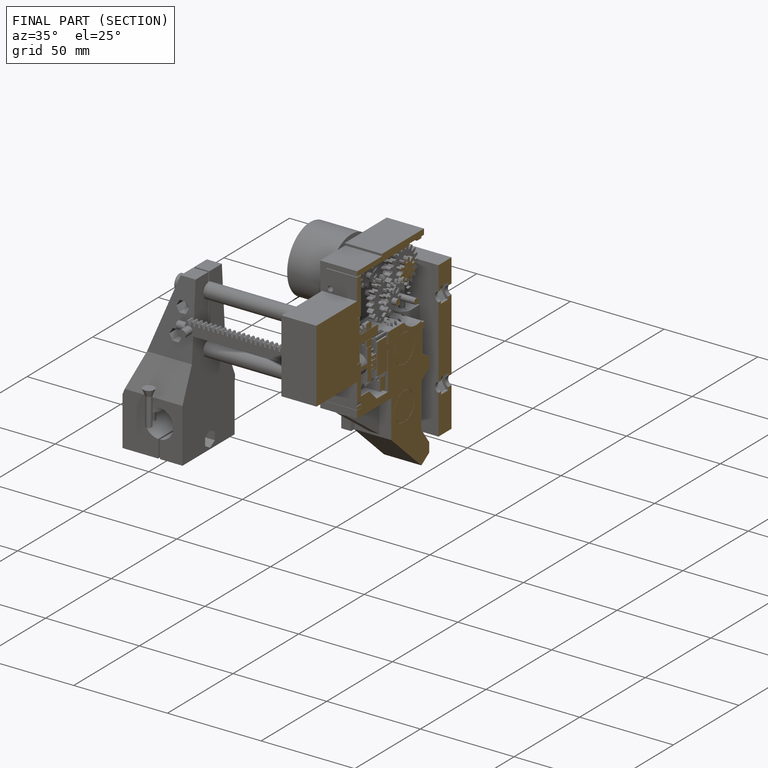
[diagram: finished part — half-section view (interior)]
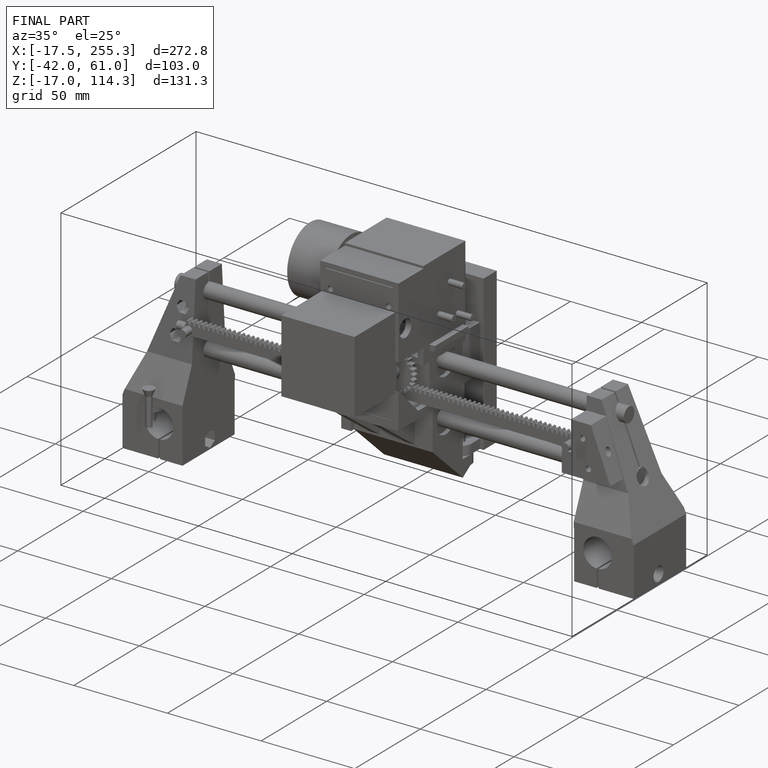
[diagram: finished part — iso view with bounding-box wireframe]
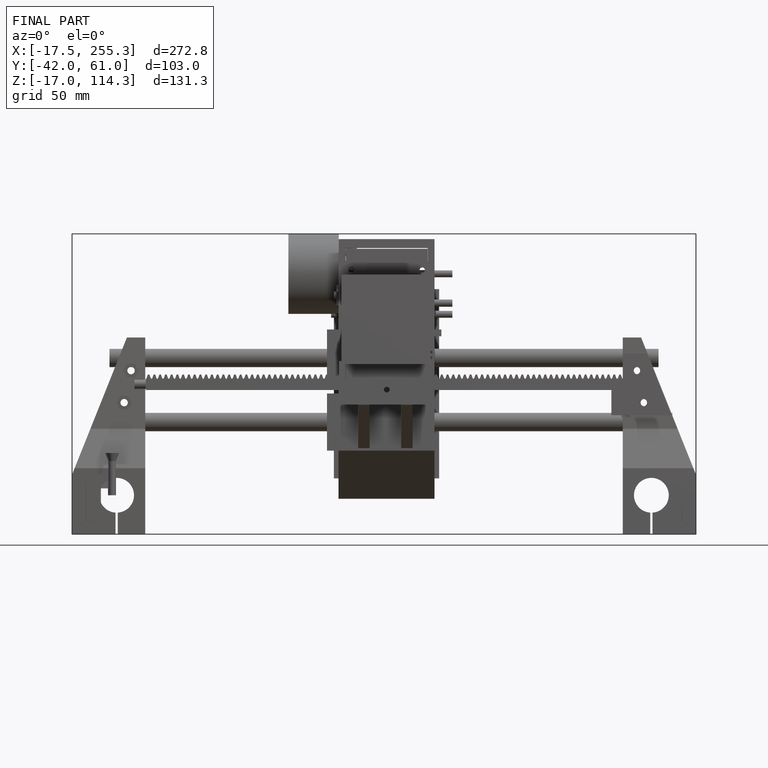
[diagram: finished part — front view with bounding-box wireframe]
